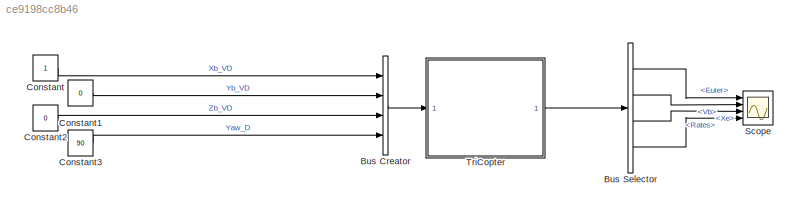
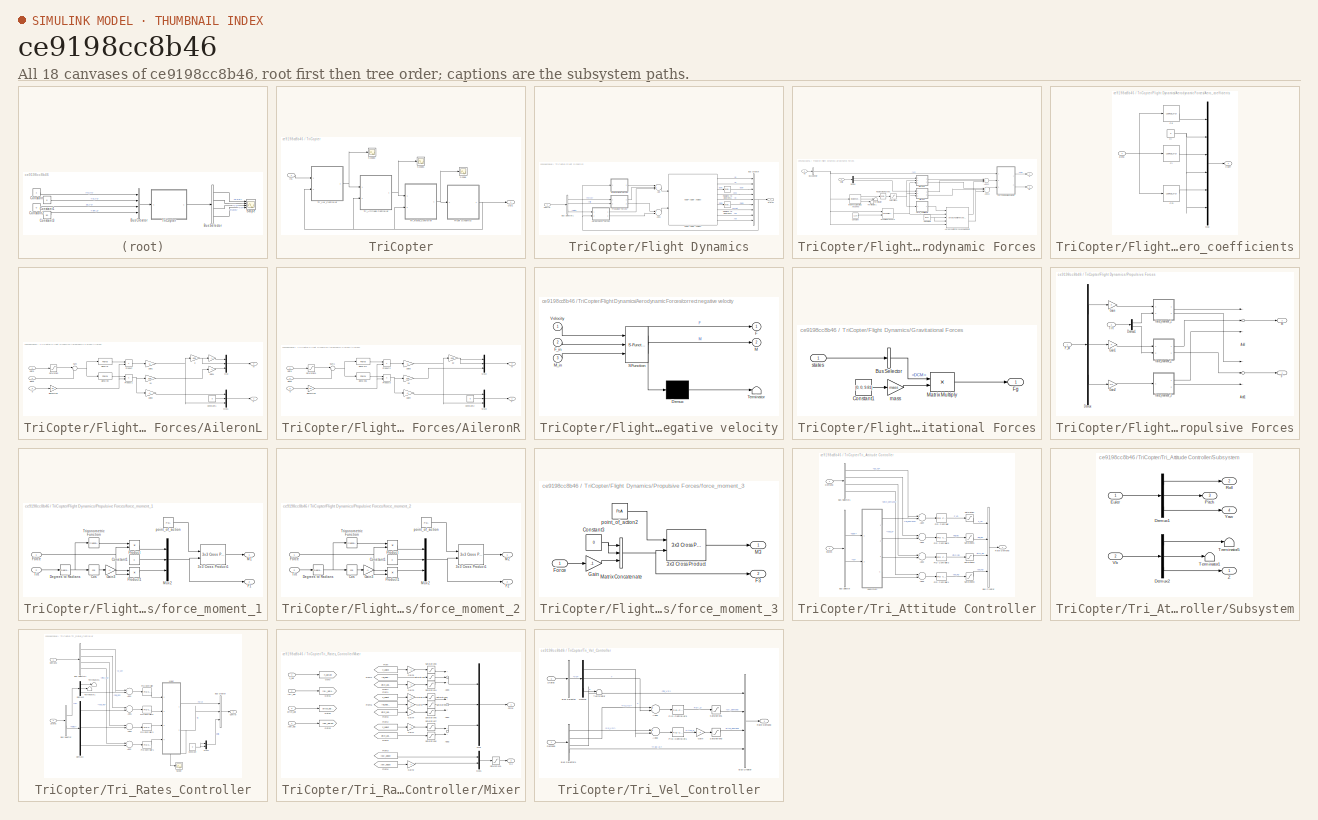
[diagram: thumbnail index - all 18 canvases of the model, root first then tree order]
MODEL slx_ce9198cc8b46
KIND model
CONFIG AbsTol = auto
CONFIG EnableMultiTasking = off
CONFIG FixedStep = auto
CONFIG MaxStep = auto
CONFIG MinStep = auto
CONFIG RelTol = 1e-3
CONFIG SampleTimeConstraint = Unconstrained
CONFIG Solver = VariableStepAuto
CONFIG SolverName = VariableStepAuto
CONFIG StartTime = 0.0
CONFIG StopTime = 200
BLOCK [BusCreator] Bus Creator
  DisplayOption = bar
  InheritFromInputs = on
  Inputs = 4
  Ports = [4, 1]
BLOCK [BusSelector] Bus Selector
  OutputAsBus = off
  OutputSignals = Euler,Vb,Xe,Rates
  Ports = [1, 4]
BLOCK [Constant] Constant
BLOCK [Constant] Constant1
  Value = 0
BLOCK [Constant] Constant2
  Value = 0
BLOCK [Constant] Constant3
  Value = 90
BLOCK [Scope] Scope
  Floating = off
  NumInputPorts = 4
  Ports = [4]
  ScopeSpecificationString = Simulink.scopes.TimeScopeBlockCfg('CurrentConfiguration', extmgr.ConfigurationSet(extmgr.Configuration('Core','General UI',true),extmgr.Configuration('Core','Source UI',true),extmgr.Configuration('Sources','WiredSimulink',true,'DataLoggingVariableName','ScopeData1'),extmgr.Configuration('Visuals','Time Domain',true,'SerializedDisplays',{struct('MinYLimReal','-58.03569','MaxYLimReal','225.42228','Y...<+1885ch>
BLOCK [SubSystem] TriCopter
  Ports = [1, 1]
  RequestExecContextInheritance = off
BLOCK [SubSystem] TriCopter/Flight Dynamics
  Ports = [1, 1]
  RequestExecContextInheritance = off
BLOCK [Reference] TriCopter/Flight Dynamics/6DOF (Euler Angles)  REF=shared6dof/6DOF (Euler Angles)
  Ports = [2, 9]
  SourceBlock = shared6dof/6DOF (Euler Angles)
  SourceProductBaseCode = AE
  SourceProductName = Aerospace Blockset
  SourceType = 6DOF EoM (Body Axis)
BLOCK [Sum] TriCopter/Flight Dynamics/Add
  InputSameDT = off
  Inputs = +++
  OutDataTypeStr = Inherit: Inherit via internal rule
  Ports = [3, 1]
  SaturateOnIntegerOverflow = off
BLOCK [Sum] TriCopter/Flight Dynamics/Add1
  InputSameDT = off
  OutDataTypeStr = Inherit: Inherit via internal rule
  Ports = [2, 1]
  SaturateOnIntegerOverflow = off
BLOCK [SubSystem] TriCopter/Flight Dynamics/Aerodynamic Forces
  Ports = [2, 2]
  RequestExecContextInheritance = off
BLOCK [Sum] TriCopter/Flight Dynamics/Aerodynamic Forces/Add12
  InputSameDT = off
  Inputs = +++
  OutDataTypeStr = Inherit: Inherit via internal rule
  Ports = [3, 1]
  SaturateOnIntegerOverflow = off
BLOCK [Sum] TriCopter/Flight Dynamics/Aerodynamic Forces/Add13
  InputSameDT = off
  Inputs = +++
  OutDataTypeStr = Inherit: Inherit via internal rule
  Ports = [3, 1]
  SaturateOnIntegerOverflow = off
BLOCK [SubSystem] TriCopter/Flight Dynamics/Aerodynamic Forces/Aero_coefficients
  Ports = [1, 1]
  RequestExecContextInheritance = off
BLOCK [Lookup_n-D] TriCopter/Flight Dynamics/Aerodynamic Forces/Aero_coefficients/Cd
  BreakpointsForDimension1 = [-22\n-20\n-18\n-16\n-14\n-12\n-10\n-8\n-6\n-4\n-2\n0\n2\n4\n6\n8\n10\n12\n14\n16\n18\n20\n22]
  InternalRulePriority = Speed
  NumberOfTableDimensions = 1
  Ports = [1, 1]
  RndMeth = Simplest
  Table = [0.392965675000000\n0.341758938000000\n0.291869622000000\n0.243198735000000\n0.201122935000000\n0.162088921000000\n0.119255102000000\n0.0879271140000000\n0.0661394560000000\n0.0508236150000000\n0.0422907190000000\n0.0388286200000000\n0.0390186100000000\n0.0428645290000000\n0.0503231290000000\n0.0617672500000000\n0.0796637510000000\n0.103830904000000\n0.130929057000000\n0.163534014000000\n0.205122935000000\n0.273406040...<+25ch>
BLOCK [Constant] TriCopter/Flight Dynamics/Aerodynamic Forces/Aero_coefficients/Cl
  Value = 0
BLOCK [Lookup_n-D] TriCopter/Flight Dynamics/Aerodynamic Forces/Aero_coefficients/Cl 
  BreakpointsForDimension1 = [-22\n-20\n-18\n-16\n-14\n-12\n-10\n-8\n-6\n-4\n-2\n0\n2\n4\n6\n8\n10\n12\n14\n16\n18\n20\n22]
  InternalRulePriority = Speed
  NumberOfTableDimensions = 1
  Ports = [1, 1]
  RndMeth = Simplest
  Table = [-1.05304747000000\n-0.939866144000000\n-0.835877820000000\n-0.772327502000000\n-0.744091351000000\n-0.678260447000000\n-0.627152575000000\n-0.541724976000000\n-0.430579689000000\n-0.309313897000000\n-0.176928086000000\n-0.0384528670000000\n0.102475219000000\n0.243855685000000\n0.381506317000000\n0.522103984000000\n0.649275996000000\n0.776705539000000\n0.874480078000000\n0.954319728000000\n1.00194617500000\n0.97672155...<+26ch>
BLOCK [Lookup_n-D] TriCopter/Flight Dynamics/Aerodynamic Forces/Aero_coefficients/Cm
  BreakpointsForDimension1 = [-22\n-20\n-18\n-16\n-14\n-12\n-10\n-8\n-6\n-4\n-2\n0\n2\n4\n6\n8\n10\n12\n14\n16\n18\n20\n22]
  InternalRulePriority = Speed
  NumberOfTableDimensions = 1
  Ports = [1, 1]
  RndMeth = Simplest
  Table = [-0.0374352130000000\n-0.0346318370000000\n-0.0299414270000000\n-0.0257262990000000\n-0.0215954230000000\n-0.0114725440000000\n0.0141471030000000\n0.0288031780000000\n0.0376529660000000\n0.0436490160000000\n0.0450585630000000\n0.0429304540000000\n0.0377977440000000\n0.0321134120000000\n0.0258494080000000\n0.0177846340000000\n0.0110621100000000\n0.00550642000000000\n0.00100000000000000\n-0.00339548100000000\n0.0115161...<+48ch>
BLOCK [Outport] TriCopter/Flight Dynamics/Aerodynamic Forces/Aero_coefficients/Coeff
  IconDisplay = Port number
BLOCK [Mux] TriCopter/Flight Dynamics/Aerodynamic Forces/Aero_coefficients/Mux
  DisplayOption = bar
  Inputs = 6
  Ports = [6, 1]
BLOCK [Inport] TriCopter/Flight Dynamics/Aerodynamic Forces/Aero_coefficients/alpha
  IconDisplay = Port number
BLOCK [Reference] TriCopter/Flight Dynamics/Aerodynamic Forces/Aerodynamic Forces and Moments   REF=aerolibadyn/Aerodynamic
Forces and Moments 
  Ports = [5, 2]
  SourceBlock = aerolibadyn/Aerodynamic\nForces and Moments
  SourceProductBaseCode = AE
  SourceProductName = Aerospace Blockset
  SourceType = Aerodynamic Forces and Moments
BLOCK [SubSystem] TriCopter/Flight Dynamics/Aerodynamic Forces/AileronL
  Ports = [3, 2]
  RequestExecContextInheritance = off
BLOCK [Gain] TriCopter/Flight Dynamics/Aerodynamic Forces/AileronL/ 
  Gain = -1
  OutDataTypeStr = Inherit: Inherit via internal rule
  ParamDataTypeStr = Inherit: Inherit via internal rule
  SaturateOnIntegerOverflow = off
BLOCK [Gain] TriCopter/Flight Dynamics/Aerodynamic Forces/AileronL/AilevonArea
  Gain = .05
  OutDataTypeStr = Inherit: Inherit via internal rule
  ParamDataTypeStr = Inherit: Inherit via internal rule
  SaturateOnIntegerOverflow = off
BLOCK [Constant] TriCopter/Flight Dynamics/Aerodynamic Forces/AileronL/Constant1
  Value = 0
BLOCK [Outport] TriCopter/Flight Dynamics/Aerodynamic Forces/AileronL/F
  IconDisplay = Port number
BLOCK [Outport] TriCopter/Flight Dynamics/Aerodynamic Forces/AileronL/M
  IconDisplay = Port number
  Port = 2
BLOCK [Mux] TriCopter/Flight Dynamics/Aerodynamic Forces/AileronL/Mux
  DisplayOption = bar
  Inputs = 3
  Ports = [3, 1]
BLOCK [Mux] TriCopter/Flight Dynamics/Aerodynamic Forces/AileronL/Mux1
  DisplayOption = bar
  Inputs = 3
  Ports = [3, 1]
BLOCK [Product] TriCopter/Flight Dynamics/Aerodynamic Forces/AileronL/Product
  InputSameDT = off
  OutDataTypeStr = Inherit: Inherit via internal rule
  Ports = [2, 1]
  RndMeth = Floor
  SaturateOnIntegerOverflow = off
BLOCK [Product] TriCopter/Flight Dynamics/Aerodynamic Forces/AileronL/Product1
  InputSameDT = off
  OutDataTypeStr = Inherit: Inherit via internal rule
  Ports = [2, 1]
  RndMeth = Floor
  SaturateOnIntegerOverflow = off
BLOCK [Saturate] TriCopter/Flight Dynamics/Aerodynamic Forces/AileronL/Saturation
  InputPortMap = u0
  LowerLimit = -20
  Ports = [1, 1]
  UpperLimit = 20
BLOCK [Sum] TriCopter/Flight Dynamics/Aerodynamic Forces/AileronL/Sum
  IconShape = round
  InputSameDT = off
  Inputs = |++
  OutDataTypeStr = Inherit: Inherit via internal rule
  Ports = [2, 1]
  SaturateOnIntegerOverflow = off
BLOCK [Gain] TriCopter/Flight Dynamics/Aerodynamic Forces/AileronL/a
  Gain = .505
  OutDataTypeStr = Inherit: Inherit via internal rule
  ParamDataTypeStr = Inherit: Inherit via internal rule
  SaturateOnIntegerOverflow = off
BLOCK [Gain] TriCopter/Flight Dynamics/Aerodynamic Forces/AileronL/a1
  Gain = .505
  OutDataTypeStr = Inherit: Inherit via internal rule
  ParamDataTypeStr = Inherit: Inherit via internal rule
  SaturateOnIntegerOverflow = off
BLOCK [Inport] TriCopter/Flight Dynamics/Aerodynamic Forces/AileronL/alpha
  IconDisplay = Port number
  Port = 2
BLOCK [Polyval] TriCopter/Flight Dynamics/Aerodynamic Forces/AileronL/alpha-CD
  Coefs = [2e-5 2e-8 -5e-5 -4e-7 .0119]
BLOCK [Polyval] TriCopter/Flight Dynamics/Aerodynamic Forces/AileronL/alpha-CL
  Coefs = [0.0987 0]
BLOCK [Inport] TriCopter/Flight Dynamics/Aerodynamic Forces/AileronL/delta
  IconDisplay = Port number
BLOCK [Gain] TriCopter/Flight Dynamics/Aerodynamic Forces/AileronL/gain1
  Gain = -1
  OutDataTypeStr = Inherit: Inherit via internal rule
  ParamDataTypeStr = Inherit: Inherit via internal rule
  SaturateOnIntegerOverflow = off
BLOCK [Gain] TriCopter/Flight Dynamics/Aerodynamic Forces/AileronL/gain2
  Gain = -1
  OutDataTypeStr = Inherit: Inherit via internal rule
  ParamDataTypeStr = Inherit: Inherit via internal rule
  SaturateOnIntegerOverflow = off
BLOCK [Gain] TriCopter/Flight Dynamics/Aerodynamic Forces/AileronL/gain4
  Gain = -1
  OutDataTypeStr = Inherit: Inherit via internal rule
  ParamDataTypeStr = Inherit: Inherit via internal rule
  SaturateOnIntegerOverflow = off
BLOCK [Inport] TriCopter/Flight Dynamics/Aerodynamic Forces/AileronL/q
  IconDisplay = Port number
  Port = 3
BLOCK [SubSystem] TriCopter/Flight Dynamics/Aerodynamic Forces/AileronR
  Ports = [3, 2]
  RequestExecContextInheritance = off
BLOCK [Gain] TriCopter/Flight Dynamics/Aerodynamic Forces/AileronR/AilevonArea
  Gain = .05
  OutDataTypeStr = Inherit: Inherit via internal rule
  ParamDataTypeStr = Inherit: Inherit via internal rule
  SaturateOnIntegerOverflow = off
BLOCK [Constant] TriCopter/Flight Dynamics/Aerodynamic Forces/AileronR/Constant2
  Value = 0
BLOCK [Outport] TriCopter/Flight Dynamics/Aerodynamic Forces/AileronR/F
  IconDisplay = Port number
BLOCK [Outport] TriCopter/Flight Dynamics/Aerodynamic Forces/AileronR/M
  IconDisplay = Port number
  Port = 2
BLOCK [Mux] TriCopter/Flight Dynamics/Aerodynamic Forces/AileronR/Mux2
  DisplayOption = bar
  Inputs = 3
  Ports = [3, 1]
BLOCK [Mux] TriCopter/Flight Dynamics/Aerodynamic Forces/AileronR/Mux3
  DisplayOption = bar
  Inputs = 3
  Ports = [3, 1]
BLOCK [Product] TriCopter/Flight Dynamics/Aerodynamic Forces/AileronR/Product2
  InputSameDT = off
  OutDataTypeStr = Inherit: Inherit via internal rule
  Ports = [2, 1]
  RndMeth = Floor
  SaturateOnIntegerOverflow = off
BLOCK [Product] TriCopter/Flight Dynamics/Aerodynamic Forces/AileronR/Product3
  InputSameDT = off
  OutDataTypeStr = Inherit: Inherit via internal rule
  Ports = [2, 1]
  RndMeth = Floor
  SaturateOnIntegerOverflow = off
BLOCK [Saturate] TriCopter/Flight Dynamics/Aerodynamic Forces/AileronR/Saturation1
  InputPortMap = u0
  LowerLimit = -20
  Ports = [1, 1]
  UpperLimit = 20
BLOCK [Sum] TriCopter/Flight Dynamics/Aerodynamic Forces/AileronR/Sum1
  IconShape = round
  InputSameDT = off
  Inputs = |++
  OutDataTypeStr = Inherit: Inherit via internal rule
  Ports = [2, 1]
  SaturateOnIntegerOverflow = off
BLOCK [Gain] TriCopter/Flight Dynamics/Aerodynamic Forces/AileronR/a2
  Gain = .505
  OutDataTypeStr = Inherit: Inherit via internal rule
  ParamDataTypeStr = Inherit: Inherit via internal rule
  SaturateOnIntegerOverflow = off
BLOCK [Gain] TriCopter/Flight Dynamics/Aerodynamic Forces/AileronR/a3
  Gain = .505
  OutDataTypeStr = Inherit: Inherit via internal rule
  ParamDataTypeStr = Inherit: Inherit via internal rule
  SaturateOnIntegerOverflow = off
BLOCK [Inport] TriCopter/Flight Dynamics/Aerodynamic Forces/AileronR/alpha
  IconDisplay = Port number
  Port = 2
BLOCK [Polyval] TriCopter/Flight Dynamics/Aerodynamic Forces/AileronR/alpha-CD1
  Coefs = [2e-5 2e-8 -5e-5 -4e-7 .0119]
BLOCK [Polyval] TriCopter/Flight Dynamics/Aerodynamic Forces/AileronR/alpha-CL1
  Coefs = [0.0987 0]
BLOCK [Inport] TriCopter/Flight Dynamics/Aerodynamic Forces/AileronR/delta
  IconDisplay = Port number
BLOCK [Gain] TriCopter/Flight Dynamics/Aerodynamic Forces/AileronR/gain3
  Gain = -1
  OutDataTypeStr = Inherit: Inherit via internal rule
  ParamDataTypeStr = Inherit: Inherit via internal rule
  SaturateOnIntegerOverflow = off
BLOCK [Gain] TriCopter/Flight Dynamics/Aerodynamic Forces/AileronR/gain4
  Gain = -1
  OutDataTypeStr = Inherit: Inherit via internal rule
  ParamDataTypeStr = Inherit: Inherit via internal rule
  SaturateOnIntegerOverflow = off
BLOCK [Inport] TriCopter/Flight Dynamics/Aerodynamic Forces/AileronR/q
  IconDisplay = Port number
  Port = 3
BLOCK [BusSelector] TriCopter/Flight Dynamics/Aerodynamic Forces/Bus Selector
  OutputAsBus = off
  OutputSignals = Vb
  Ports = [1, 1]
BLOCK [Constant] TriCopter/Flight Dynamics/Aerodynamic Forces/Constant
  Value = 1.225
BLOCK [Constant] TriCopter/Flight Dynamics/Aerodynamic Forces/Constant2
  Value = [0 0 0]
BLOCK [Demux] TriCopter/Flight Dynamics/Aerodynamic Forces/Demux
  DisplayOption = bar
  Outputs = 2
  Ports = [1, 2]
BLOCK [Reference] TriCopter/Flight Dynamics/Aerodynamic Forces/Dynamic Pressure  REF=aerolibasang/Dynamic Pressure
  Ports = [2, 1]
  SourceBlock = aerolibasang/Dynamic Pressure
  SourceProductBaseCode = AE
  SourceProductName = Aerospace Blockset
  SourceType = Dynamic Pressure
BLOCK [Outport] TriCopter/Flight Dynamics/Aerodynamic Forces/F
  IconDisplay = Port number
BLOCK [Reference] TriCopter/Flight Dynamics/Aerodynamic Forces/Incidence, Sideslip, & Airspeed  REF=aerolibasang/Incidence, Sideslip,
& Airspeed
  Ports = [1, 3]
  SourceBlock = aerolibasang/Incidence, Sideslip,\n& Airspeed
  SourceProductBaseCode = AE
  SourceProductName = Aerospace Blockset
  SourceType = Incidence,Sideslip,&Airspeed
BLOCK [Outport] TriCopter/Flight Dynamics/Aerodynamic Forces/M
  IconDisplay = Port number
  Port = 2
BLOCK [Reference] TriCopter/Flight Dynamics/Aerodynamic Forces/Radians to Degrees  REF=simulink_extras/Transformations/Radians
to Degrees
  Ports = [1, 1]
  SourceBlock = simulink_extras/Transformations/Radians\nto Degrees
  SourceProductBaseCode = SL
  SourceProductName = Simulink
  SourceType = RadiansToDegrees
BLOCK [Saturate] TriCopter/Flight Dynamics/Aerodynamic Forces/Saturation1
  InputPortMap = u0
  LowerLimit = -22
  Ports = [1, 1]
  UpperLimit = 22
BLOCK [Terminator] TriCopter/Flight Dynamics/Aerodynamic Forces/Terminator
BLOCK [Terminator] TriCopter/Flight Dynamics/Aerodynamic Forces/Terminator1
BLOCK [Inport] TriCopter/Flight Dynamics/Aerodynamic Forces/Vb
  IconDisplay = Port number
  Port = 2
BLOCK [SubSystem] TriCopter/Flight Dynamics/Aerodynamic Forces/correct negative velocity
  ErrorFcn = Stateflow.Translate.translate
  PermitHierarchicalResolution = ExplicitOnly
  Ports = [3, 2]
  RequestExecContextInheritance = off
  SFBlockType = MATLAB Function
  TreatAsAtomicUnit = on
BLOCK [Demux] TriCopter/Flight Dynamics/Aerodynamic Forces/correct negative velocity/ Demux 
  Outputs = 1
  Ports = [1, 1]
BLOCK [S-Function] TriCopter/Flight Dynamics/Aerodynamic Forces/correct negative velocity/ SFunction 
  EnableBusSupport = on
  FunctionName = sf_sfun
  PortCounts = [3 3]
  Ports = [3, 3]
  SFcnIsStateOwnerBlock = off
  SFunctionDeploymentMode = off
  Tag = Stateflow S-Function Tricopter_vel_control 1
BLOCK [Terminator] TriCopter/Flight Dynamics/Aerodynamic Forces/correct negative velocity/ Terminator 
BLOCK [Outport] TriCopter/Flight Dynamics/Aerodynamic Forces/correct negative velocity/F
  IconDisplay = Port number
BLOCK [Inport] TriCopter/Flight Dynamics/Aerodynamic Forces/correct negative velocity/F_in
  IconDisplay = Port number
  Port = 2
BLOCK [Outport] TriCopter/Flight Dynamics/Aerodynamic Forces/correct negative velocity/M
  IconDisplay = Port number
  Port = 2
BLOCK [Inport] TriCopter/Flight Dynamics/Aerodynamic Forces/correct negative velocity/M_in
  IconDisplay = Port number
  Port = 3
BLOCK [Inport] TriCopter/Flight Dynamics/Aerodynamic Forces/correct negative velocity/Velocity
  IconDisplay = Port number
BLOCK [Inport] TriCopter/Flight Dynamics/Aerodynamic Forces/delta
  IconDisplay = Port number
BLOCK [BusCreator] TriCopter/Flight Dynamics/Bus Creator
  DisplayOption = bar
  InheritFromInputs = on
  Inputs = 9
  Ports = [9, 1]
BLOCK [BusSelector] TriCopter/Flight Dynamics/Bus Selector1
  OutputAsBus = off
  OutputSignals = Force,Tilt,Delta
  Ports = [1, 3]
BLOCK [Inport] TriCopter/Flight Dynamics/Control
  IconDisplay = Port number
BLOCK [SubSystem] TriCopter/Flight Dynamics/Gravitational Forces
  Ports = [1, 1]
  RequestExecContextInheritance = off
BLOCK [BusSelector] TriCopter/Flight Dynamics/Gravitational Forces/Bus Selector
  OutputAsBus = off
  OutputSignals = DCM
  Ports = [1, 1]
BLOCK [Constant] TriCopter/Flight Dynamics/Gravitational Forces/Constant1
  Value = [0; 0; 9.81]
BLOCK [Outport] TriCopter/Flight Dynamics/Gravitational Forces/Fg
  IconDisplay = Port number
BLOCK [Product] TriCopter/Flight Dynamics/Gravitational Forces/Matrix Multiply
  InputSameDT = off
  Multiplication = Matrix(*)
  OutDataTypeStr = Inherit: Inherit via internal rule
  Ports = [2, 1]
  RndMeth = Floor
  SaturateOnIntegerOverflow = off
BLOCK [Gain] TriCopter/Flight Dynamics/Gravitational Forces/mass
  Gain = mass
  OutDataTypeStr = Inherit: Inherit via internal rule
  ParamDataTypeStr = Inherit: Inherit via internal rule
  SaturateOnIntegerOverflow = off
BLOCK [Inport] TriCopter/Flight Dynamics/Gravitational Forces/states
  IconDisplay = Port number
BLOCK [SubSystem] TriCopter/Flight Dynamics/Propulsive Forces
  Ports = [2, 2]
  RequestExecContextInheritance = off
BLOCK [Sum] TriCopter/Flight Dynamics/Propulsive Forces/Add
  InputSameDT = off
  Inputs = +++
  OutDataTypeStr = Inherit: Inherit via internal rule
  Ports = [3, 1]
  SaturateOnIntegerOverflow = off
BLOCK [Sum] TriCopter/Flight Dynamics/Propulsive Forces/Add1
  InputSameDT = off
  Inputs = +++
  OutDataTypeStr = Inherit: Inherit via internal rule
  Ports = [3, 1]
  SaturateOnIntegerOverflow = off
BLOCK [Demux] TriCopter/Flight Dynamics/Propulsive Forces/Demux
  DisplayOption = bar
  Outputs = 3
  Ports = [1, 3]
BLOCK [Demux] TriCopter/Flight Dynamics/Propulsive Forces/Demux1
  DisplayOption = bar
  Outputs = 2
  Ports = [1, 2]
BLOCK [Outport] TriCopter/Flight Dynamics/Propulsive Forces/F
  IconDisplay = Port number
BLOCK [Inport] TriCopter/Flight Dynamics/Propulsive Forces/F_M 
  IconDisplay = Port number
BLOCK [Gain] TriCopter/Flight Dynamics/Propulsive Forces/Gain
  Gain = F
  OutDataTypeStr = Inherit: Inherit via internal rule
  ParamDataTypeStr = Inherit: Inherit via internal rule
  SaturateOnIntegerOverflow = off
BLOCK [Gain] TriCopter/Flight Dynamics/Propulsive Forces/Gain1
  Gain = F
  OutDataTypeStr = Inherit: Inherit via internal rule
  ParamDataTypeStr = Inherit: Inherit via internal rule
  SaturateOnIntegerOverflow = off
BLOCK [Gain] TriCopter/Flight Dynamics/Propulsive Forces/Gain2
  Gain = 2*F
  OutDataTypeStr = Inherit: Inherit via internal rule
  ParamDataTypeStr = Inherit: Inherit via internal rule
  SaturateOnIntegerOverflow = off
BLOCK [Outport] TriCopter/Flight Dynamics/Propulsive Forces/M
  IconDisplay = Port number
  Port = 2
BLOCK [Inport] TriCopter/Flight Dynamics/Propulsive Forces/Tilt
  IconDisplay = Port number
  Port = 2
BLOCK [SubSystem] TriCopter/Flight Dynamics/Propulsive Forces/force_moment_1
  Ports = [2, 2]
  RequestExecContextInheritance = off
BLOCK [Reference] TriCopter/Flight Dynamics/Propulsive Forces/force_moment_1/3x3 Cross Product1  REF=sharedutil/3x3 Cross Product
  Ports = [2, 1]
  SourceBlock = sharedutil/3x3 Cross Product
  SourceProductBaseCode = AE
  SourceProductName = Aerospace Blockset
  SourceType = CrossProduct
BLOCK [Constant] TriCopter/Flight Dynamics/Propulsive Forces/force_moment_1/Constant1
  Value = 0
BLOCK [Trigonometry] TriCopter/Flight Dynamics/Propulsive Forces/force_moment_1/Cos
  Operator = cos
  Ports = [1, 1]
BLOCK [Reference] TriCopter/Flight Dynamics/Propulsive Forces/force_moment_1/Degrees to Radians  REF=simulink_extras/Transformations/Degrees to
Radians
  Ports = [1, 1]
  SourceBlock = simulink_extras/Transformations/Degrees to\nRadians
  SourceProductBaseCode = SL
  SourceProductName = Simulink
  SourceType = DegreesToRadians
BLOCK [Outport] TriCopter/Flight Dynamics/Propulsive Forces/force_moment_1/F1 
  IconDisplay = Port number
  Port = 2
BLOCK [Inport] TriCopter/Flight Dynamics/Propulsive Forces/force_moment_1/Force
  IconDisplay = Port number
BLOCK [Gain] TriCopter/Flight Dynamics/Propulsive Forces/force_moment_1/Gain3
  Gain = -1
  OutDataTypeStr = Inherit: Inherit via internal rule
  ParamDataTypeStr = Inherit: Inherit via internal rule
  SaturateOnIntegerOverflow = off
BLOCK [Outport] TriCopter/Flight Dynamics/Propulsive Forces/force_moment_1/M1
  IconDisplay = Port number
BLOCK [Mux] TriCopter/Flight Dynamics/Propulsive Forces/force_moment_1/Mux2
  DisplayOption = bar
  Inputs = 3
  Ports = [3, 1]
BLOCK [Product] TriCopter/Flight Dynamics/Propulsive Forces/force_moment_1/Product
  InputSameDT = off
  OutDataTypeStr = Inherit: Inherit via internal rule
  Ports = [2, 1]
  RndMeth = Floor
  SaturateOnIntegerOverflow = off
BLOCK [Product] TriCopter/Flight Dynamics/Propulsive Forces/force_moment_1/Product1
  InputSameDT = off
  OutDataTypeStr = Inherit: Inherit via internal rule
  Ports = [2, 1]
  RndMeth = Floor
  SaturateOnIntegerOverflow = off
BLOCK [Inport] TriCopter/Flight Dynamics/Propulsive Forces/force_moment_1/Tilt
  IconDisplay = Port number
  Port = 2
BLOCK [Trigonometry] TriCopter/Flight Dynamics/Propulsive Forces/force_moment_1/Trigonometric Function
  Ports = [1, 1]
BLOCK [Constant] TriCopter/Flight Dynamics/Propulsive Forces/force_moment_1/point_of_action
  Value = PoA
  VectorParams1D = off
BLOCK [SubSystem] TriCopter/Flight Dynamics/Propulsive Forces/force_moment_2
  Ports = [2, 2]
  RequestExecContextInheritance = off
BLOCK [Reference] TriCopter/Flight Dynamics/Propulsive Forces/force_moment_2/3x3 Cross Product1  REF=sharedutil/3x3 Cross Product
  Ports = [2, 1]
  SourceBlock = sharedutil/3x3 Cross Product
  SourceProductBaseCode = AE
  SourceProductName = Aerospace Blockset
  SourceType = CrossProduct
BLOCK [Constant] TriCopter/Flight Dynamics/Propulsive Forces/force_moment_2/Constant1
  Value = 0
BLOCK [Trigonometry] TriCopter/Flight Dynamics/Propulsive Forces/force_moment_2/Cos
  Operator = cos
  Ports = [1, 1]
BLOCK [Reference] TriCopter/Flight Dynamics/Propulsive Forces/force_moment_2/Degrees to Radians  REF=simulink_extras/Transformations/Degrees to
Radians
  Ports = [1, 1]
  SourceBlock = simulink_extras/Transformations/Degrees to\nRadians
  SourceProductBaseCode = SL
  SourceProductName = Simulink
  SourceType = DegreesToRadians
BLOCK [Outport] TriCopter/Flight Dynamics/Propulsive Forces/force_moment_2/F2 
  IconDisplay = Port number
  Port = 2
BLOCK [Inport] TriCopter/Flight Dynamics/Propulsive Forces/force_moment_2/Force
  IconDisplay = Port number
BLOCK [Gain] TriCopter/Flight Dynamics/Propulsive Forces/force_moment_2/Gain3
  Gain = -1
  OutDataTypeStr = Inherit: Inherit via internal rule
  ParamDataTypeStr = Inherit: Inherit via internal rule
  SaturateOnIntegerOverflow = off
BLOCK [Outport] TriCopter/Flight Dynamics/Propulsive Forces/force_moment_2/M2
  IconDisplay = Port number
BLOCK [Mux] TriCopter/Flight Dynamics/Propulsive Forces/force_moment_2/Mux2
  DisplayOption = bar
  Inputs = 3
  Ports = [3, 1]
BLOCK [Product] TriCopter/Flight Dynamics/Propulsive Forces/force_moment_2/Product
  InputSameDT = off
  OutDataTypeStr = Inherit: Inherit via internal rule
  Ports = [2, 1]
  RndMeth = Floor
  SaturateOnIntegerOverflow = off
BLOCK [Product] TriCopter/Flight Dynamics/Propulsive Forces/force_moment_2/Product1
  InputSameDT = off
  OutDataTypeStr = Inherit: Inherit via internal rule
  Ports = [2, 1]
  RndMeth = Floor
  SaturateOnIntegerOverflow = off
BLOCK [Inport] TriCopter/Flight Dynamics/Propulsive Forces/force_moment_2/Tilt
  IconDisplay = Port number
  Port = 2
BLOCK [Trigonometry] TriCopter/Flight Dynamics/Propulsive Forces/force_moment_2/Trigonometric Function
  Ports = [1, 1]
BLOCK [Constant] TriCopter/Flight Dynamics/Propulsive Forces/force_moment_2/point_of_action
  Value = PoA
  VectorParams1D = off
BLOCK [SubSystem] TriCopter/Flight Dynamics/Propulsive Forces/force_moment_3
  Ports = [1, 2]
  RequestExecContextInheritance = off
BLOCK [Reference] TriCopter/Flight Dynamics/Propulsive Forces/force_moment_3/3x3 Cross Product  REF=sharedutil/3x3 Cross Product
  Ports = [2, 1]
  SourceBlock = sharedutil/3x3 Cross Product
  SourceProductBaseCode = AE
  SourceProductName = Aerospace Blockset
  SourceType = CrossProduct
BLOCK [Constant] TriCopter/Flight Dynamics/Propulsive Forces/force_moment_3/Constant3
  Value = 0
BLOCK [Outport] TriCopter/Flight Dynamics/Propulsive Forces/force_moment_3/F3
  IconDisplay = Port number
  Port = 2
BLOCK [Inport] TriCopter/Flight Dynamics/Propulsive Forces/force_moment_3/Force
  IconDisplay = Port number
BLOCK [Gain] TriCopter/Flight Dynamics/Propulsive Forces/force_moment_3/Gain
  Gain = -1
  OutDataTypeStr = Inherit: Inherit via internal rule
  ParamDataTypeStr = Inherit: Inherit via internal rule
  SaturateOnIntegerOverflow = off
BLOCK [Outport] TriCopter/Flight Dynamics/Propulsive Forces/force_moment_3/M3
  IconDisplay = Port number
BLOCK [Concatenate] TriCopter/Flight Dynamics/Propulsive Forces/force_moment_3/Matrix Concatenate
  ConcatenateDimension = 2
  NumInputs = 3
  Ports = [3, 1]
BLOCK [Constant] TriCopter/Flight Dynamics/Propulsive Forces/force_moment_3/point_of_action2
  Value = PoA
  VectorParams1D = off
BLOCK [Reference] TriCopter/Flight Dynamics/Radians to Degrees1  REF=simulink_extras/Transformations/Radians
to Degrees
  Ports = [1, 1]
  SourceBlock = simulink_extras/Transformations/Radians\nto Degrees
  SourceProductBaseCode = SL
  SourceProductName = Simulink
  SourceType = RadiansToDegrees
BLOCK [Reference] TriCopter/Flight Dynamics/Radians to Degrees2  REF=simulink_extras/Transformations/Radians
to Degrees
  Ports = [1, 1]
  SourceBlock = simulink_extras/Transformations/Radians\nto Degrees
  SourceProductBaseCode = SL
  SourceProductName = Simulink
  SourceType = RadiansToDegrees
BLOCK [Outport] TriCopter/Flight Dynamics/States
  IconDisplay = Port number
BLOCK [Inport] TriCopter/In1
  IconDisplay = Port number
BLOCK [Outport] TriCopter/Out1
  IconDisplay = Port number
BLOCK [Scope] TriCopter/Scope
  Floating = off
  NumInputPorts = 1
  Ports = [1]
  ScopeSpecificationString = Simulink.scopes.TimeScopeBlockCfg('CurrentConfiguration', extmgr.ConfigurationSet(extmgr.Configuration('Core','General UI',true),extmgr.Configuration('Core','Source UI',true),extmgr.Configuration('Sources','WiredSimulink',true),extmgr.Configuration('Visuals','Time Domain',true,'SerializedDisplays',{struct('MinYLimReal','-2.5','MaxYLimReal','2.5','YLabelReal','','MinYLimMag','0.00000','MaxYLimMag',...<+1466ch>
BLOCK [Scope] TriCopter/Scope1
  Floating = off
  NumInputPorts = 1
  Ports = [1]
  ScopeSpecificationString = Simulink.scopes.TimeScopeBlockCfg('CurrentConfiguration', extmgr.ConfigurationSet(extmgr.Configuration('Core','General UI',true),extmgr.Configuration('Core','Source UI',true),extmgr.Configuration('Sources','WiredSimulink',true,'DataLoggingVariableName','ScopeData2'),extmgr.Configuration('Visuals','Time Domain',true,'SerializedDisplays',{struct('MinYLimReal','-1.0112','MaxYLimReal','0.31084','YLabe...<+1662ch>
BLOCK [Scope] TriCopter/Scope2
  Floating = off
  NumInputPorts = 1
  Ports = [1]
  ScopeSpecificationString = Simulink.scopes.TimeScopeBlockCfg('CurrentConfiguration', extmgr.ConfigurationSet(extmgr.Configuration('Core','General UI',true),extmgr.Configuration('Core','Source UI',true),extmgr.Configuration('Sources','WiredSimulink',true,'DataLoggingVariableName','ScopeData3'),extmgr.Configuration('Visuals','Time Domain',true,'SerializedDisplays',{struct('MinYLimReal','-2.71947','MaxYLimReal','0.23855','YLab...<+1644ch>
BLOCK [SubSystem] TriCopter/Tri_Attitude Controller
  Ports = [2, 1]
  RequestExecContextInheritance = off
BLOCK [Sum] TriCopter/Tri_Attitude Controller/Add1
  InputSameDT = off
  Inputs = +-
  OutDataTypeStr = Inherit: Inherit via internal rule
  Ports = [2, 1]
  SaturateOnIntegerOverflow = off
BLOCK [Sum] TriCopter/Tri_Attitude Controller/Add2
  InputSameDT = off
  Inputs = +-
  OutDataTypeStr = Inherit: Inherit via internal rule
  Ports = [2, 1]
  SaturateOnIntegerOverflow = off
BLOCK [Sum] TriCopter/Tri_Attitude Controller/Add3
  InputSameDT = off
  Inputs = +-
  OutDataTypeStr = Inherit: Inherit via internal rule
  Ports = [2, 1]
  SaturateOnIntegerOverflow = off
BLOCK [Sum] TriCopter/Tri_Attitude Controller/Add4
  InputSameDT = off
  Inputs = +-
  OutDataTypeStr = Inherit: Inherit via internal rule
  Ports = [2, 1]
  SaturateOnIntegerOverflow = off
BLOCK [BusCreator] TriCopter/Tri_Attitude Controller/Bus Creator
  DisplayOption = bar
  InheritFromInputs = on
  Inputs = 4
  Ports = [4, 1]
BLOCK [BusSelector] TriCopter/Tri_Attitude Controller/Bus Selector
  OutputAsBus = off
  OutputSignals = Euler,Vb
  Ports = [1, 2]
BLOCK [BusSelector] TriCopter/Tri_Attitude Controller/Bus Selector1
  OutputAsBus = off
  OutputSignals = Zb_VD,roll_demand,pitch_demand,Yaw_D
  Ports = [1, 4]
BLOCK [Inport] TriCopter/Tri_Attitude Controller/Demand 
  IconDisplay = Port number
BLOCK [Reference] TriCopter/Tri_Attitude Controller/PID Controller  REF=simulink/Continuous/PID Controller
  Ports = [1, 1]
  SourceBlock = simulink/Continuous/PID Controller
  SourceProductBaseCode = SL
  SourceProductName = Simulink
  SourceType = PID 1dof
BLOCK [Reference] TriCopter/Tri_Attitude Controller/PID Controller1  REF=simulink/Continuous/PID Controller
  Ports = [1, 1]
  SourceBlock = simulink/Continuous/PID Controller
  SourceProductBaseCode = SL
  SourceProductName = Simulink
  SourceType = PID 1dof
BLOCK [Reference] TriCopter/Tri_Attitude Controller/PID Controller3  REF=simulink/Continuous/PID Controller
  Ports = [1, 1]
  SourceBlock = simulink/Continuous/PID Controller
  SourceProductBaseCode = SL
  SourceProductName = Simulink
  SourceType = PID 1dof
BLOCK [Reference] TriCopter/Tri_Attitude Controller/PID Controller5  REF=simulink/Continuous/PID Controller
  Ports = [1, 1]
  SourceBlock = simulink/Continuous/PID Controller
  SourceProductBaseCode = SL
  SourceProductName = Simulink
  SourceType = PID 1dof
BLOCK [Outport] TriCopter/Tri_Attitude Controller/Rate Demand
  IconDisplay = Port number
BLOCK [Saturate] TriCopter/Tri_Attitude Controller/Saturation
  InputPortMap = u0
  LinearizeAsGain = off
  LowerLimit = -30
  Ports = [1, 1]
  UpperLimit = 30
BLOCK [Saturate] TriCopter/Tri_Attitude Controller/Saturation1
  InputPortMap = u0
  LinearizeAsGain = off
  LowerLimit = -30
  Ports = [1, 1]
  UpperLimit = 30
BLOCK [Saturate] TriCopter/Tri_Attitude Controller/Saturation2
  InputPortMap = u0
  LinearizeAsGain = off
  LowerLimit = -30
  Ports = [1, 1]
  UpperLimit = 30
BLOCK [Saturate] TriCopter/Tri_Attitude Controller/Saturation3
  InputPortMap = u0
  LinearizeAsGain = off
  LowerLimit = -30
  Ports = [1, 1]
  UpperLimit = 30
BLOCK [Inport] TriCopter/Tri_Attitude Controller/States 
  IconDisplay = Port number
  Port = 2
BLOCK [SubSystem] TriCopter/Tri_Attitude Controller/Subsystem
  Ports = [2, 4]
  RequestExecContextInheritance = off
BLOCK [Demux] TriCopter/Tri_Attitude Controller/Subsystem/Demux1
  DisplayOption = bar
  Outputs = 3
  Ports = [1, 3]
BLOCK [Demux] TriCopter/Tri_Attitude Controller/Subsystem/Demux2
  DisplayOption = bar
  Outputs = 3
  Ports = [1, 3]
BLOCK [Inport] TriCopter/Tri_Attitude Controller/Subsystem/Euler
  IconDisplay = Port number
BLOCK [Outport] TriCopter/Tri_Attitude Controller/Subsystem/Pitch
  IconDisplay = Port number
  Port = 3
BLOCK [Outport] TriCopter/Tri_Attitude Controller/Subsystem/Roll
  IconDisplay = Port number
  Port = 2
BLOCK [Terminator] TriCopter/Tri_Attitude Controller/Subsystem/Terminator1
BLOCK [Terminator] TriCopter/Tri_Attitude Controller/Subsystem/Terminator5
BLOCK [Inport] TriCopter/Tri_Attitude Controller/Subsystem/Vb
  IconDisplay = Port number
  Port = 2
BLOCK [Outport] TriCopter/Tri_Attitude Controller/Subsystem/Yaw
  IconDisplay = Port number
  Port = 4
BLOCK [Outport] TriCopter/Tri_Attitude Controller/Subsystem/Z
  IconDisplay = Port number
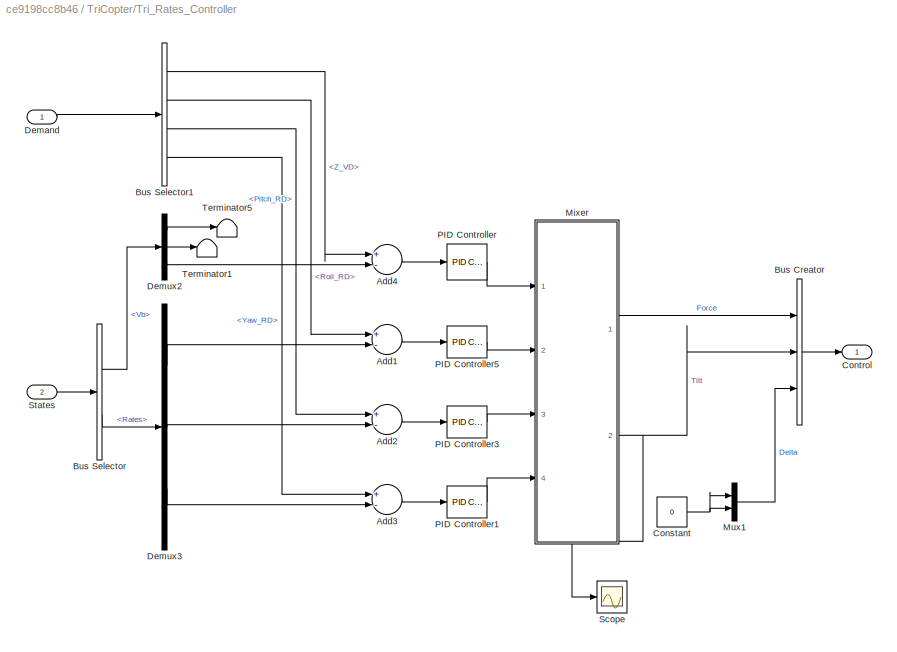
BLOCK [SubSystem] TriCopter/Tri_Rates_Controller
  Ports = [2, 1]
  RequestExecContextInheritance = off
BLOCK [Sum] TriCopter/Tri_Rates_Controller/Add1
  InputSameDT = off
  Inputs = +-
  OutDataTypeStr = Inherit: Inherit via internal rule
  Ports = [2, 1]
  SaturateOnIntegerOverflow = off
BLOCK [Sum] TriCopter/Tri_Rates_Controller/Add2
  InputSameDT = off
  Inputs = +-
  OutDataTypeStr = Inherit: Inherit via internal rule
  Ports = [2, 1]
  SaturateOnIntegerOverflow = off
BLOCK [Sum] TriCopter/Tri_Rates_Controller/Add3
  InputSameDT = off
  Inputs = +-
  OutDataTypeStr = Inherit: Inherit via internal rule
  Ports = [2, 1]
  SaturateOnIntegerOverflow = off
BLOCK [Sum] TriCopter/Tri_Rates_Controller/Add4
  InputSameDT = off
  Inputs = +-
  OutDataTypeStr = Inherit: Inherit via internal rule
  Ports = [2, 1]
  SaturateOnIntegerOverflow = off
BLOCK [BusCreator] TriCopter/Tri_Rates_Controller/Bus Creator
  DisplayOption = bar
  InheritFromInputs = on
  Inputs = 3
  Ports = [3, 1]
BLOCK [BusSelector] TriCopter/Tri_Rates_Controller/Bus Selector
  OutputAsBus = off
  OutputSignals = Vb,Rates
  Ports = [1, 2]
BLOCK [BusSelector] TriCopter/Tri_Rates_Controller/Bus Selector1
  OutputAsBus = off
  OutputSignals = Z_VD,Roll_RD,Pitch_RD,Yaw_RD
  Ports = [1, 4]
BLOCK [Constant] TriCopter/Tri_Rates_Controller/Constant
  Value = 0
BLOCK [Outport] TriCopter/Tri_Rates_Controller/Control
  IconDisplay = Port number
BLOCK [Inport] TriCopter/Tri_Rates_Controller/Demand
  IconDisplay = Port number
BLOCK [Demux] TriCopter/Tri_Rates_Controller/Demux2
  DisplayOption = bar
  Outputs = 3
  Ports = [1, 3]
BLOCK [Demux] TriCopter/Tri_Rates_Controller/Demux3
  DisplayOption = bar
  Outputs = 3
  Ports = [1, 3]
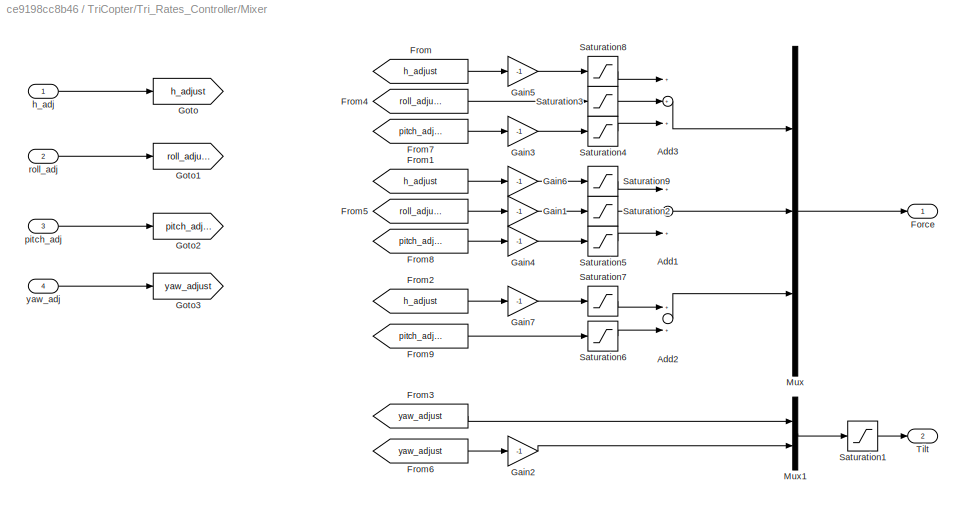
BLOCK [SubSystem] TriCopter/Tri_Rates_Controller/Mixer
  Ports = [4, 2]
  RequestExecContextInheritance = off
BLOCK [Sum] TriCopter/Tri_Rates_Controller/Mixer/Add1
  InputSameDT = off
  Inputs = +++
  OutDataTypeStr = Inherit: Inherit via internal rule
  Ports = [3, 1]
  SaturateOnIntegerOverflow = off
BLOCK [Sum] TriCopter/Tri_Rates_Controller/Mixer/Add2
  InputSameDT = off
  OutDataTypeStr = Inherit: Inherit via internal rule
  Ports = [2, 1]
  SaturateOnIntegerOverflow = off
BLOCK [Sum] TriCopter/Tri_Rates_Controller/Mixer/Add3
  InputSameDT = off
  Inputs = +++
  OutDataTypeStr = Inherit: Inherit via internal rule
  Ports = [3, 1]
  SaturateOnIntegerOverflow = off
BLOCK [Outport] TriCopter/Tri_Rates_Controller/Mixer/Force
  IconDisplay = Port number
BLOCK [From] TriCopter/Tri_Rates_Controller/Mixer/From
  GotoTag = h_adjust
BLOCK [From] TriCopter/Tri_Rates_Controller/Mixer/From1
  GotoTag = h_adjust
BLOCK [From] TriCopter/Tri_Rates_Controller/Mixer/From2
  GotoTag = h_adjust
BLOCK [From] TriCopter/Tri_Rates_Controller/Mixer/From3
  GotoTag = yaw_adjust
BLOCK [From] TriCopter/Tri_Rates_Controller/Mixer/From4
  GotoTag = roll_adjust
BLOCK [From] TriCopter/Tri_Rates_Controller/Mixer/From5
  GotoTag = roll_adjust
BLOCK [From] TriCopter/Tri_Rates_Controller/Mixer/From6
  GotoTag = yaw_adjust
BLOCK [From] TriCopter/Tri_Rates_Controller/Mixer/From7
  GotoTag = pitch_adjust
BLOCK [From] TriCopter/Tri_Rates_Controller/Mixer/From8
  GotoTag = pitch_adjust
BLOCK [From] TriCopter/Tri_Rates_Controller/Mixer/From9
  GotoTag = pitch_adjust
BLOCK [Gain] TriCopter/Tri_Rates_Controller/Mixer/Gain1
  Gain = -1
  OutDataTypeStr = Inherit: Inherit via internal rule
  ParamDataTypeStr = Inherit: Inherit via internal rule
  SaturateOnIntegerOverflow = off
BLOCK [Gain] TriCopter/Tri_Rates_Controller/Mixer/Gain2
  Gain = -1
  OutDataTypeStr = Inherit: Inherit via internal rule
  ParamDataTypeStr = Inherit: Inherit via internal rule
  SaturateOnIntegerOverflow = off
BLOCK [Gain] TriCopter/Tri_Rates_Controller/Mixer/Gain3
  Gain = -1
  OutDataTypeStr = Inherit: Inherit via internal rule
  ParamDataTypeStr = Inherit: Inherit via internal rule
  SaturateOnIntegerOverflow = off
BLOCK [Gain] TriCopter/Tri_Rates_Controller/Mixer/Gain4
  Gain = -1
  OutDataTypeStr = Inherit: Inherit via internal rule
  ParamDataTypeStr = Inherit: Inherit via internal rule
  SaturateOnIntegerOverflow = off
BLOCK [Gain] TriCopter/Tri_Rates_Controller/Mixer/Gain5
  Gain = -1
  OutDataTypeStr = Inherit: Inherit via internal rule
  ParamDataTypeStr = Inherit: Inherit via internal rule
  SaturateOnIntegerOverflow = off
BLOCK [Gain] TriCopter/Tri_Rates_Controller/Mixer/Gain6
  Gain = -1
  OutDataTypeStr = Inherit: Inherit via internal rule
  ParamDataTypeStr = Inherit: Inherit via internal rule
  SaturateOnIntegerOverflow = off
BLOCK [Gain] TriCopter/Tri_Rates_Controller/Mixer/Gain7
  Gain = -1
  OutDataTypeStr = Inherit: Inherit via internal rule
  ParamDataTypeStr = Inherit: Inherit via internal rule
  SaturateOnIntegerOverflow = off
BLOCK [Goto] TriCopter/Tri_Rates_Controller/Mixer/Goto
  GotoTag = h_adjust
BLOCK [Goto] TriCopter/Tri_Rates_Controller/Mixer/Goto1
  GotoTag = roll_adjust
BLOCK [Goto] TriCopter/Tri_Rates_Controller/Mixer/Goto2
  GotoTag = pitch_adjust
BLOCK [Goto] TriCopter/Tri_Rates_Controller/Mixer/Goto3
  GotoTag = yaw_adjust
BLOCK [Mux] TriCopter/Tri_Rates_Controller/Mixer/Mux
  DisplayOption = bar
  Inputs = 3
  Ports = [3, 1]
BLOCK [Mux] TriCopter/Tri_Rates_Controller/Mixer/Mux1
  DisplayOption = bar
  Inputs = 2
  Ports = [2, 1]
BLOCK [Saturate] TriCopter/Tri_Rates_Controller/Mixer/Saturation1
  InputPortMap = u0
  LowerLimit = -2
  Ports = [1, 1]
  UpperLimit = 2
  ZeroCross = off
BLOCK [Saturate] TriCopter/Tri_Rates_Controller/Mixer/Saturation2
  InputPortMap = u0
  LowerLimit = 0
  Ports = [1, 1]
  UpperLimit = 0.3
  ZeroCross = off
BLOCK [Saturate] TriCopter/Tri_Rates_Controller/Mixer/Saturation3
  InputPortMap = u0
  LowerLimit = 0
  Ports = [1, 1]
  UpperLimit = 0.3
  ZeroCross = off
BLOCK [Saturate] TriCopter/Tri_Rates_Controller/Mixer/Saturation4
  InputPortMap = u0
  LowerLimit = 0
  Ports = [1, 1]
  UpperLimit = 0.3
  ZeroCross = off
BLOCK [Saturate] TriCopter/Tri_Rates_Controller/Mixer/Saturation5
  InputPortMap = u0
  LowerLimit = 0
  Ports = [1, 1]
  UpperLimit = 0.3
  ZeroCross = off
BLOCK [Saturate] TriCopter/Tri_Rates_Controller/Mixer/Saturation6
  InputPortMap = u0
  LowerLimit = 0
  Ports = [1, 1]
  UpperLimit = 0.3
  ZeroCross = off
BLOCK [Saturate] TriCopter/Tri_Rates_Controller/Mixer/Saturation7
  InputPortMap = u0
  LowerLimit = 0
  Ports = [1, 1]
  UpperLimit = 0.7
  ZeroCross = off
BLOCK [Saturate] TriCopter/Tri_Rates_Controller/Mixer/Saturation8
  InputPortMap = u0
  LowerLimit = 0
  Ports = [1, 1]
  UpperLimit = 0.7
  ZeroCross = off
BLOCK [Saturate] TriCopter/Tri_Rates_Controller/Mixer/Saturation9
  InputPortMap = u0
  LowerLimit = 0
  Ports = [1, 1]
  UpperLimit = 0.7
  ZeroCross = off
BLOCK [Outport] TriCopter/Tri_Rates_Controller/Mixer/Tilt
  IconDisplay = Port number
  Port = 2
BLOCK [Inport] TriCopter/Tri_Rates_Controller/Mixer/h_adj
  IconDisplay = Port number
BLOCK [Inport] TriCopter/Tri_Rates_Controller/Mixer/pitch_adj
  IconDisplay = Port number
  Port = 3
BLOCK [Inport] TriCopter/Tri_Rates_Controller/Mixer/roll_adj
  IconDisplay = Port number
  Port = 2
BLOCK [Inport] TriCopter/Tri_Rates_Controller/Mixer/yaw_adj
  IconDisplay = Port number
  Port = 4
BLOCK [Mux] TriCopter/Tri_Rates_Controller/Mux1
  DisplayOption = bar
  Inputs = 2
  Ports = [2, 1]
BLOCK [Reference] TriCopter/Tri_Rates_Controller/PID Controller  REF=simulink/Continuous/PID Controller
  Ports = [1, 1]
  SourceBlock = simulink/Continuous/PID Controller
  SourceProductBaseCode = SL
  SourceProductName = Simulink
  SourceType = PID 1dof
BLOCK [Reference] TriCopter/Tri_Rates_Controller/PID Controller1  REF=simulink/Continuous/PID Controller
  Ports = [1, 1]
  SourceBlock = simulink/Continuous/PID Controller
  SourceProductBaseCode = SL
  SourceProductName = Simulink
  SourceType = PID 1dof
BLOCK [Reference] TriCopter/Tri_Rates_Controller/PID Controller3  REF=simulink/Continuous/PID Controller
  Ports = [1, 1]
  SourceBlock = simulink/Continuous/PID Controller
  SourceProductBaseCode = SL
  SourceProductName = Simulink
  SourceType = PID 1dof
BLOCK [Reference] TriCopter/Tri_Rates_Controller/PID Controller5  REF=simulink/Continuous/PID Controller
  Ports = [1, 1]
  SourceBlock = simulink/Continuous/PID Controller
  SourceProductBaseCode = SL
  SourceProductName = Simulink
  SourceType = PID 1dof
BLOCK [Scope] TriCopter/Tri_Rates_Controller/Scope
  Floating = off
  NumInputPorts = 1
  Ports = [1]
  ScopeSpecificationString = Simulink.scopes.TimeScopeBlockCfg('CurrentConfiguration', extmgr.ConfigurationSet(extmgr.Configuration('Core','General UI',true),extmgr.Configuration('Core','Source UI',true),extmgr.Configuration('Sources','WiredSimulink',true,'DataLoggingVariableName','ScopeData4'),extmgr.Configuration('Visuals','Time Domain',true,'SerializedDisplays',{struct('MinYLimReal','-15.48314','MaxYLimReal','15.24619','YL...<+1450ch>
BLOCK [Inport] TriCopter/Tri_Rates_Controller/States 
  IconDisplay = Port number
  Port = 2
BLOCK [Terminator] TriCopter/Tri_Rates_Controller/Terminator1
BLOCK [Terminator] TriCopter/Tri_Rates_Controller/Terminator5
BLOCK [SubSystem] TriCopter/Tri_Vel_Controller
  Ports = [2, 1]
  RequestExecContextInheritance = off
BLOCK [Sum] TriCopter/Tri_Vel_Controller/Add2
  InputSameDT = off
  Inputs = +-
  OutDataTypeStr = Inherit: Inherit via internal rule
  Ports = [2, 1]
  SaturateOnIntegerOverflow = off
BLOCK [Sum] TriCopter/Tri_Vel_Controller/Add3
  InputSameDT = off
  Inputs = +-
  OutDataTypeStr = Inherit: Inherit via internal rule
  Ports = [2, 1]
  SaturateOnIntegerOverflow = off
BLOCK [BusCreator] TriCopter/Tri_Vel_Controller/Bus Creator
  DisplayOption = bar
  InheritFromInputs = on
  Inputs = 4
  Ports = [4, 1]
BLOCK [BusSelector] TriCopter/Tri_Vel_Controller/Bus Selector
  OutputAsBus = off
  OutputSignals = Vb
  Ports = [1, 1]
BLOCK [BusSelector] TriCopter/Tri_Vel_Controller/Bus Selector1
  OutputAsBus = off
  OutputSignals = Xb_VD,Yb_VD,Zb_VD,Yaw_D
  Ports = [1, 4]
BLOCK [Inport] TriCopter/Tri_Vel_Controller/Demand 
  IconDisplay = Port number
BLOCK [Demux] TriCopter/Tri_Vel_Controller/Demux
  DisplayOption = bar
  Outputs = 3
  Ports = [1, 3]
BLOCK [Gain] TriCopter/Tri_Vel_Controller/Gain
  Gain = -1
  OutDataTypeStr = Inherit: Inherit via internal rule
  ParamDataTypeStr = Inherit: Inherit via internal rule
  SaturateOnIntegerOverflow = off
BLOCK [Reference] TriCopter/Tri_Vel_Controller/PID Controller1  REF=simulink/Continuous/PID Controller
  Ports = [1, 1]
  SourceBlock = simulink/Continuous/PID Controller
  SourceProductBaseCode = SL
  SourceProductName = Simulink
  SourceType = PID 1dof
BLOCK [Reference] TriCopter/Tri_Vel_Controller/PID Controller3  REF=simulink/Continuous/PID Controller
  Ports = [1, 1]
  SourceBlock = simulink/Continuous/PID Controller
  SourceProductBaseCode = SL
  SourceProductName = Simulink
  SourceType = PID 1dof
BLOCK [Outport] TriCopter/Tri_Vel_Controller/Rate Demand
  IconDisplay = Port number
BLOCK [Saturate] TriCopter/Tri_Vel_Controller/Saturation1
  InputPortMap = u0
  LinearizeAsGain = off
  LowerLimit = -10
  Ports = [1, 1]
  UpperLimit = 10
BLOCK [Saturate] TriCopter/Tri_Vel_Controller/Saturation3
  InputPortMap = u0
  LinearizeAsGain = off
  LowerLimit = -20
  Ports = [1, 1]
  UpperLimit = 10
BLOCK [Inport] TriCopter/Tri_Vel_Controller/States 
  IconDisplay = Port number
  Port = 2
BLOCK [Terminator] TriCopter/Tri_Vel_Controller/Terminator
LINE Bus Creator:1 -> TriCopter:1
LINE Bus Selector:1 -> Scope:1
LINE Bus Selector:2 -> Scope:2
LINE Bus Selector:3 -> Scope:3
LINE Bus Selector:4 -> Scope:4
LINE Constant1:1 -> Bus Creator:2
LINE Constant2:1 -> Bus Creator:3
LINE Constant3:1 -> Bus Creator:4
LINE Constant:1 -> Bus Creator:1
LINE TriCopter/Flight Dynamics/6DOF (Euler Angles):1 -> TriCopter/Flight Dynamics/Bus Creator:1
LINE TriCopter/Flight Dynamics/6DOF (Euler Angles):2 -> TriCopter/Flight Dynamics/Bus Creator:2
LINE TriCopter/Flight Dynamics/6DOF (Euler Angles):3 -> TriCopter/Flight Dynamics/Radians to Degrees1:1
LINE TriCopter/Flight Dynamics/6DOF (Euler Angles):4 -> TriCopter/Flight Dynamics/Bus Creator:4
LINE TriCopter/Flight Dynamics/6DOF (Euler Angles):5 -> TriCopter/Flight Dynamics/Bus Creator:5
LINE TriCopter/Flight Dynamics/6DOF (Euler Angles):6 -> TriCopter/Flight Dynamics/Radians to Degrees2:1
LINE TriCopter/Flight Dynamics/6DOF (Euler Angles):7 -> TriCopter/Flight Dynamics/Bus Creator:7
LINE TriCopter/Flight Dynamics/6DOF (Euler Angles):8 -> TriCopter/Flight Dynamics/Bus Creator:8
LINE TriCopter/Flight Dynamics/6DOF (Euler Angles):9 -> TriCopter/Flight Dynamics/Bus Creator:9
LINE TriCopter/Flight Dynamics/Add1:1 -> TriCopter/Flight Dynamics/6DOF (Euler Angles):2
LINE TriCopter/Flight Dynamics/Add:1 -> TriCopter/Flight Dynamics/6DOF (Euler Angles):1
LINE TriCopter/Flight Dynamics/Aerodynamic Forces/Add12:1 -> TriCopter/Flight Dynamics/Aerodynamic Forces/correct negative velocity:2
LINE TriCopter/Flight Dynamics/Aerodynamic Forces/Add13:1 -> TriCopter/Flight Dynamics/Aerodynamic Forces/correct negative velocity:3
LINE TriCopter/Flight Dynamics/Aerodynamic Forces/Aero_coefficients/Cd:1 -> TriCopter/Flight Dynamics/Aerodynamic Forces/Aero_coefficients/Mux:1
LINE TriCopter/Flight Dynamics/Aerodynamic Forces/Aero_coefficients/Cl :1 -> TriCopter/Flight Dynamics/Aerodynamic Forces/Aero_coefficients/Mux:3
NET TriCopter/Flight Dynamics/Aerodynamic Forces/Aero_coefficients/Cl:1 -> TriCopter/Flight Dynamics/Aerodynamic Forces/Aero_coefficients/Mux:2, TriCopter/Flight Dynamics/Aerodynamic Forces/Aero_coefficients/Mux:4, TriCopter/Flight Dynamics/Aerodynamic Forces/Aero_coefficients/Mux:6
LINE TriCopter/Flight Dynamics/Aerodynamic Forces/Aero_coefficients/Cm:1 -> TriCopter/Flight Dynamics/Aerodynamic Forces/Aero_coefficients/Mux:5
LINE TriCopter/Flight Dynamics/Aerodynamic Forces/Aero_coefficients/Mux:1 -> TriCopter/Flight Dynamics/Aerodynamic Forces/Aero_coefficients/Coeff:1
NET TriCopter/Flight Dynamics/Aerodynamic Forces/Aero_coefficients/alpha:1 -> TriCopter/Flight Dynamics/Aerodynamic Forces/Aero_coefficients/Cd:1, TriCopter/Flight Dynamics/Aerodynamic Forces/Aero_coefficients/Cl :1, TriCopter/Flight Dynamics/Aerodynamic Forces/Aero_coefficients/Cm:1
LINE TriCopter/Flight Dynamics/Aerodynamic Forces/Aero_coefficients:1 -> TriCopter/Flight Dynamics/Aerodynamic Forces/Aerodynamic Forces and Moments :1
LINE TriCopter/Flight Dynamics/Aerodynamic Forces/Aerodynamic Forces and Moments :1 -> TriCopter/Flight Dynamics/Aerodynamic Forces/Add12:3
LINE TriCopter/Flight Dynamics/Aerodynamic Forces/Aerodynamic Forces and Moments :2 -> TriCopter/Flight Dynamics/Aerodynamic Forces/Add13:3
LINE TriCopter/Flight Dynamics/Aerodynamic Forces/AileronL/ :1 -> TriCopter/Flight Dynamics/Aerodynamic Forces/AileronL/Mux:1
NET TriCopter/Flight Dynamics/Aerodynamic Forces/AileronL/AilevonArea:1 -> TriCopter/Flight Dynamics/Aerodynamic Forces/AileronL/Product1:2, TriCopter/Flight Dynamics/Aerodynamic Forces/AileronL/Product:2
LINE TriCopter/Flight Dynamics/Aerodynamic Forces/AileronL/Constant1:1 -> TriCopter/Flight Dynamics/Aerodynamic Forces/AileronL/Mux1:2
LINE TriCopter/Flight Dynamics/Aerodynamic Forces/AileronL/Mux1:1 -> TriCopter/Flight Dynamics/Aerodynamic Forces/AileronL/F:1
LINE TriCopter/Flight Dynamics/Aerodynamic Forces/AileronL/Mux:1 -> TriCopter/Flight Dynamics/Aerodynamic Forces/AileronL/M:1
NET TriCopter/Flight Dynamics/Aerodynamic Forces/AileronL/Product1:1 -> TriCopter/Flight Dynamics/Aerodynamic Forces/AileronL/a1:1, TriCopter/Flight Dynamics/Aerodynamic Forces/AileronL/gain2:1
LINE TriCopter/Flight Dynamics/Aerodynamic Forces/AileronL/Product:1 -> TriCopter/Flight Dynamics/Aerodynamic Forces/AileronL/gain1:1
LINE TriCopter/Flight Dynamics/Aerodynamic Forces/AileronL/Saturation:1 -> TriCopter/Flight Dynamics/Aerodynamic Forces/AileronL/Sum:1
NET TriCopter/Flight Dynamics/Aerodynamic Forces/AileronL/Sum:1 -> TriCopter/Flight Dynamics/Aerodynamic Forces/AileronL/alpha-CD:1, TriCopter/Flight Dynamics/Aerodynamic Forces/AileronL/alpha-CL:1
LINE TriCopter/Flight Dynamics/Aerodynamic Forces/AileronL/a1:1 -> TriCopter/Flight Dynamics/Aerodynamic Forces/AileronL/gain4:1
NET TriCopter/Flight Dynamics/Aerodynamic Forces/AileronL/a:1 -> TriCopter/Flight Dynamics/Aerodynamic Forces/AileronL/ :1, TriCopter/Flight Dynamics/Aerodynamic Forces/AileronL/Mux:2
LINE TriCopter/Flight Dynamics/Aerodynamic Forces/AileronL/alpha-CD:1 -> TriCopter/Flight Dynamics/Aerodynamic Forces/AileronL/Product1:1
LINE TriCopter/Flight Dynamics/Aerodynamic Forces/AileronL/alpha-CL:1 -> TriCopter/Flight Dynamics/Aerodynamic Forces/AileronL/Product:1
LINE TriCopter/Flight Dynamics/Aerodynamic Forces/AileronL/alpha:1 -> TriCopter/Flight Dynamics/Aerodynamic Forces/AileronL/Sum:2
LINE TriCopter/Flight Dynamics/Aerodynamic Forces/AileronL/delta:1 -> TriCopter/Flight Dynamics/Aerodynamic Forces/AileronL/Saturation:1
NET TriCopter/Flight Dynamics/Aerodynamic Forces/AileronL/gain1:1 -> TriCopter/Flight Dynamics/Aerodynamic Forces/AileronL/Mux1:3, TriCopter/Flight Dynamics/Aerodynamic Forces/AileronL/a:1
LINE TriCopter/Flight Dynamics/Aerodynamic Forces/AileronL/gain2:1 -> TriCopter/Flight Dynamics/Aerodynamic Forces/AileronL/Mux1:1
LINE TriCopter/Flight Dynamics/Aerodynamic Forces/AileronL/gain4:1 -> TriCopter/Flight Dynamics/Aerodynamic Forces/AileronL/Mux:3
LINE TriCopter/Flight Dynamics/Aerodynamic Forces/AileronL/q:1 -> TriCopter/Flight Dynamics/Aerodynamic Forces/AileronL/AilevonArea:1
LINE TriCopter/Flight Dynamics/Aerodynamic Forces/AileronL:1 -> TriCopter/Flight Dynamics/Aerodynamic Forces/Add12:2
LINE TriCopter/Flight Dynamics/Aerodynamic Forces/AileronL:2 -> TriCopter/Flight Dynamics/Aerodynamic Forces/Add13:2
NET TriCopter/Flight Dynamics/Aerodynamic Forces/AileronR/AilevonArea:1 -> TriCopter/Flight Dynamics/Aerodynamic Forces/AileronR/Product2:2, TriCopter/Flight Dynamics/Aerodynamic Forces/AileronR/Product3:2
LINE TriCopter/Flight Dynamics/Aerodynamic Forces/AileronR/Constant2:1 -> TriCopter/Flight Dynamics/Aerodynamic Forces/AileronR/Mux3:2
LINE TriCopter/Flight Dynamics/Aerodynamic Forces/AileronR/Mux2:1 -> TriCopter/Flight Dynamics/Aerodynamic Forces/AileronR/M:1
LINE TriCopter/Flight Dynamics/Aerodynamic Forces/AileronR/Mux3:1 -> TriCopter/Flight Dynamics/Aerodynamic Forces/AileronR/F:1
LINE TriCopter/Flight Dynamics/Aerodynamic Forces/AileronR/Product2:1 -> TriCopter/Flight Dynamics/Aerodynamic Forces/AileronR/gain3:1
NET TriCopter/Flight Dynamics/Aerodynamic Forces/AileronR/Product3:1 -> TriCopter/Flight Dynamics/Aerodynamic Forces/AileronR/a3:1, TriCopter/Flight Dynamics/Aerodynamic Forces/AileronR/gain4:1
LINE TriCopter/Flight Dynamics/Aerodynamic Forces/AileronR/Saturation1:1 -> TriCopter/Flight Dynamics/Aerodynamic Forces/AileronR/Sum1:1
NET TriCopter/Flight Dynamics/Aerodynamic Forces/AileronR/Sum1:1 -> TriCopter/Flight Dynamics/Aerodynamic Forces/AileronR/alpha-CD1:1, TriCopter/Flight Dynamics/Aerodynamic Forces/AileronR/alpha-CL1:1
NET TriCopter/Flight Dynamics/Aerodynamic Forces/AileronR/a2:1 -> TriCopter/Flight Dynamics/Aerodynamic Forces/AileronR/Mux2:1, TriCopter/Flight Dynamics/Aerodynamic Forces/AileronR/Mux2:2
LINE TriCopter/Flight Dynamics/Aerodynamic Forces/AileronR/a3:1 -> TriCopter/Flight Dynamics/Aerodynamic Forces/AileronR/Mux2:3
LINE TriCopter/Flight Dynamics/Aerodynamic Forces/AileronR/alpha-CD1:1 -> TriCopter/Flight Dynamics/Aerodynamic Forces/AileronR/Product3:1
LINE TriCopter/Flight Dynamics/Aerodynamic Forces/AileronR/alpha-CL1:1 -> TriCopter/Flight Dynamics/Aerodynamic Forces/AileronR/Product2:1
LINE TriCopter/Flight Dynamics/Aerodynamic Forces/AileronR/alpha:1 -> TriCopter/Flight Dynamics/Aerodynamic Forces/AileronR/Sum1:2
LINE TriCopter/Flight Dynamics/Aerodynamic Forces/AileronR/delta:1 -> TriCopter/Flight Dynamics/Aerodynamic Forces/AileronR/Saturation1:1
NET TriCopter/Flight Dynamics/Aerodynamic Forces/AileronR/gain3:1 -> TriCopter/Flight Dynamics/Aerodynamic Forces/AileronR/Mux3:3, TriCopter/Flight Dynamics/Aerodynamic Forces/AileronR/a2:1
LINE TriCopter/Flight Dynamics/Aerodynamic Forces/AileronR/gain4:1 -> TriCopter/Flight Dynamics/Aerodynamic Forces/AileronR/Mux3:1
LINE TriCopter/Flight Dynamics/Aerodynamic Forces/AileronR/q:1 -> TriCopter/Flight Dynamics/Aerodynamic Forces/AileronR/AilevonArea:1
LINE TriCopter/Flight Dynamics/Aerodynamic Forces/AileronR:1 -> TriCopter/Flight Dynamics/Aerodynamic Forces/Add12:1
LINE TriCopter/Flight Dynamics/Aerodynamic Forces/AileronR:2 -> TriCopter/Flight Dynamics/Aerodynamic Forces/Add13:1
NET TriCopter/Flight Dynamics/Aerodynamic Forces/Bus Selector:1 -> TriCopter/Flight Dynamics/Aerodynamic Forces/Aerodynamic Forces and Moments :5, TriCopter/Flight Dynamics/Aerodynamic Forces/Dynamic Pressure:1, TriCopter/Flight Dynamics/Aerodynamic Forces/Incidence, Sideslip, & Airspeed:1, TriCopter/Flight Dynamics/Aerodynamic Forces/correct negative velocity:1
NET TriCopter/Flight Dynamics/Aerodynamic Forces/Constant2:1 -> TriCopter/Flight Dynamics/Aerodynamic Forces/Aerodynamic Forces and Moments :3, TriCopter/Flight Dynamics/Aerodynamic Forces/Aerodynamic Forces and Moments :4
LINE TriCopter/Flight Dynamics/Aerodynamic Forces/Constant:1 -> TriCopter/Flight Dynamics/Aerodynamic Forces/Dynamic Pressure:2
LINE TriCopter/Flight Dynamics/Aerodynamic Forces/Demux:1 -> TriCopter/Flight Dynamics/Aerodynamic Forces/AileronR:1
LINE TriCopter/Flight Dynamics/Aerodynamic Forces/Demux:2 -> TriCopter/Flight Dynamics/Aerodynamic Forces/AileronL:1
NET TriCopter/Flight Dynamics/Aerodynamic Forces/Dynamic Pressure:1 -> TriCopter/Flight Dynamics/Aerodynamic Forces/Aerodynamic Forces and Moments :2, TriCopter/Flight Dynamics/Aerodynamic Forces/AileronL:3, TriCopter/Flight Dynamics/Aerodynamic Forces/AileronR:3
LINE TriCopter/Flight Dynamics/Aerodynamic Forces/Incidence, Sideslip, & Airspeed:1 -> TriCopter/Flight Dynamics/Aerodynamic Forces/Radians to Degrees:1
LINE TriCopter/Flight Dynamics/Aerodynamic Forces/Incidence, Sideslip, & Airspeed:2 -> TriCopter/Flight Dynamics/Aerodynamic Forces/Terminator:1
LINE TriCopter/Flight Dynamics/Aerodynamic Forces/Incidence, Sideslip, & Airspeed:3 -> TriCopter/Flight Dynamics/Aerodynamic Forces/Terminator1:1
LINE TriCopter/Flight Dynamics/Aerodynamic Forces/Radians to Degrees:1 -> TriCopter/Flight Dynamics/Aerodynamic Forces/Saturation1:1
NET TriCopter/Flight Dynamics/Aerodynamic Forces/Saturation1:1 -> TriCopter/Flight Dynamics/Aerodynamic Forces/Aero_coefficients:1, TriCopter/Flight Dynamics/Aerodynamic Forces/AileronL:2, TriCopter/Flight Dynamics/Aerodynamic Forces/AileronR:2
LINE TriCopter/Flight Dynamics/Aerodynamic Forces/Vb:1 -> TriCopter/Flight Dynamics/Aerodynamic Forces/Bus Selector:1
LINE TriCopter/Flight Dynamics/Aerodynamic Forces/correct negative velocity:1 -> TriCopter/Flight Dynamics/Aerodynamic Forces/F:1
LINE TriCopter/Flight Dynamics/Aerodynamic Forces/correct negative velocity:2 -> TriCopter/Flight Dynamics/Aerodynamic Forces/M:1
LINE TriCopter/Flight Dynamics/Aerodynamic Forces/delta:1 -> TriCopter/Flight Dynamics/Aerodynamic Forces/Demux:1
LINE TriCopter/Flight Dynamics/Aerodynamic Forces:1 -> TriCopter/Flight Dynamics/Add:3
LINE TriCopter/Flight Dynamics/Aerodynamic Forces:2 -> TriCopter/Flight Dynamics/Add1:2
NET TriCopter/Flight Dynamics/Bus Creator:1 -> TriCopter/Flight Dynamics/Aerodynamic Forces:2, TriCopter/Flight Dynamics/Gravitational Forces:1, TriCopter/Flight Dynamics/States:1
LINE TriCopter/Flight Dynamics/Bus Selector1:1 -> TriCopter/Flight Dynamics/Propulsive Forces:1
LINE TriCopter/Flight Dynamics/Bus Selector1:2 -> TriCopter/Flight Dynamics/Propulsive Forces:2
LINE TriCopter/Flight Dynamics/Bus Selector1:3 -> TriCopter/Flight Dynamics/Aerodynamic Forces:1
LINE TriCopter/Flight Dynamics/Control:1 -> TriCopter/Flight Dynamics/Bus Selector1:1
LINE TriCopter/Flight Dynamics/Gravitational Forces/Bus Selector:1 -> TriCopter/Flight Dynamics/Gravitational Forces/Matrix Multiply:1
LINE TriCopter/Flight Dynamics/Gravitational Forces/Constant1:1 -> TriCopter/Flight Dynamics/Gravitational Forces/mass:1
LINE TriCopter/Flight Dynamics/Gravitational Forces/Matrix Multiply:1 -> TriCopter/Flight Dynamics/Gravitational Forces/Fg:1
LINE TriCopter/Flight Dynamics/Gravitational Forces/mass:1 -> TriCopter/Flight Dynamics/Gravitational Forces/Matrix Multiply:2
LINE TriCopter/Flight Dynamics/Gravitational Forces/states:1 -> TriCopter/Flight Dynamics/Gravitational Forces/Bus Selector:1
LINE TriCopter/Flight Dynamics/Gravitational Forces:1 -> TriCopter/Flight Dynamics/Add:1
LINE TriCopter/Flight Dynamics/Propulsive Forces/Add1:1 -> TriCopter/Flight Dynamics/Propulsive Forces/F:1
LINE TriCopter/Flight Dynamics/Propulsive Forces/Add:1 -> TriCopter/Flight Dynamics/Propulsive Forces/M:1
LINE TriCopter/Flight Dynamics/Propulsive Forces/Demux1:1 -> TriCopter/Flight Dynamics/Propulsive Forces/force_moment_1:2
LINE TriCopter/Flight Dynamics/Propulsive Forces/Demux1:2 -> TriCopter/Flight Dynamics/Propulsive Forces/force_moment_2:2
LINE TriCopter/Flight Dynamics/Propulsive Forces/Demux:1 -> TriCopter/Flight Dynamics/Propulsive Forces/Gain:1
LINE TriCopter/Flight Dynamics/Propulsive Forces/Demux:2 -> TriCopter/Flight Dynamics/Propulsive Forces/Gain1:1
LINE TriCopter/Flight Dynamics/Propulsive Forces/Demux:3 -> TriCopter/Flight Dynamics/Propulsive Forces/Gain2:1
LINE TriCopter/Flight Dynamics/Propulsive Forces/F_M :1 -> TriCopter/Flight Dynamics/Propulsive Forces/Demux:1
LINE TriCopter/Flight Dynamics/Propulsive Forces/Gain1:1 -> TriCopter/Flight Dynamics/Propulsive Forces/force_moment_2:1
LINE TriCopter/Flight Dynamics/Propulsive Forces/Gain2:1 -> TriCopter/Flight Dynamics/Propulsive Forces/force_moment_3:1
LINE TriCopter/Flight Dynamics/Propulsive Forces/Gain:1 -> TriCopter/Flight Dynamics/Propulsive Forces/force_moment_1:1
LINE TriCopter/Flight Dynamics/Propulsive Forces/Tilt:1 -> TriCopter/Flight Dynamics/Propulsive Forces/Demux1:1
LINE TriCopter/Flight Dynamics/Propulsive Forces/force_moment_1/3x3 Cross Product1:1 -> TriCopter/Flight Dynamics/Propulsive Forces/force_moment_1/M1:1
LINE TriCopter/Flight Dynamics/Propulsive Forces/force_moment_1/Constant1:1 -> TriCopter/Flight Dynamics/Propulsive Forces/force_moment_1/Mux2:2
LINE TriCopter/Flight Dynamics/Propulsive Forces/force_moment_1/Cos:1 -> TriCopter/Flight Dynamics/Propulsive Forces/force_moment_1/Gain3:1
NET TriCopter/Flight Dynamics/Propulsive Forces/force_moment_1/Degrees to Radians:1 -> TriCopter/Flight Dynamics/Propulsive Forces/force_moment_1/Cos:1, TriCopter/Flight Dynamics/Propulsive Forces/force_moment_1/Trigonometric Function:1
NET TriCopter/Flight Dynamics/Propulsive Forces/force_moment_1/Force:1 -> TriCopter/Flight Dynamics/Propulsive Forces/force_moment_1/Product1:2, TriCopter/Flight Dynamics/Propulsive Forces/force_moment_1/Product:2
LINE TriCopter/Flight Dynamics/Propulsive Forces/force_moment_1/Gain3:1 -> TriCopter/Flight Dynamics/Propulsive Forces/force_moment_1/Product1:1
NET TriCopter/Flight Dynamics/Propulsive Forces/force_moment_1/Mux2:1 -> TriCopter/Flight Dynamics/Propulsive Forces/force_moment_1/3x3 Cross Product1:2, TriCopter/Flight Dynamics/Propulsive Forces/force_moment_1/F1 :1
LINE TriCopter/Flight Dynamics/Propulsive Forces/force_moment_1/Product1:1 -> TriCopter/Flight Dynamics/Propulsive Forces/force_moment_1/Mux2:3
LINE TriCopter/Flight Dynamics/Propulsive Forces/force_moment_1/Product:1 -> TriCopter/Flight Dynamics/Propulsive Forces/force_moment_1/Mux2:1
LINE TriCopter/Flight Dynamics/Propulsive Forces/force_moment_1/Tilt:1 -> TriCopter/Flight Dynamics/Propulsive Forces/force_moment_1/Degrees to Radians:1
LINE TriCopter/Flight Dynamics/Propulsive Forces/force_moment_1/Trigonometric Function:1 -> TriCopter/Flight Dynamics/Propulsive Forces/force_moment_1/Product:1
LINE TriCopter/Flight Dynamics/Propulsive Forces/force_moment_1/point_of_action:1 -> TriCopter/Flight Dynamics/Propulsive Forces/force_moment_1/3x3 Cross Product1:1
LINE TriCopter/Flight Dynamics/Propulsive Forces/force_moment_1:1 -> TriCopter/Flight Dynamics/Propulsive Forces/Add:1
LINE TriCopter/Flight Dynamics/Propulsive Forces/force_moment_1:2 -> TriCopter/Flight Dynamics/Propulsive Forces/Add1:1
LINE TriCopter/Flight Dynamics/Propulsive Forces/force_moment_2/3x3 Cross Product1:1 -> TriCopter/Flight Dynamics/Propulsive Forces/force_moment_2/M2:1
LINE TriCopter/Flight Dynamics/Propulsive Forces/force_moment_2/Constant1:1 -> TriCopter/Flight Dynamics/Propulsive Forces/force_moment_2/Mux2:2
LINE TriCopter/Flight Dynamics/Propulsive Forces/force_moment_2/Cos:1 -> TriCopter/Flight Dynamics/Propulsive Forces/force_moment_2/Gain3:1
NET TriCopter/Flight Dynamics/Propulsive Forces/force_moment_2/Degrees to Radians:1 -> TriCopter/Flight Dynamics/Propulsive Forces/force_moment_2/Cos:1, TriCopter/Flight Dynamics/Propulsive Forces/force_moment_2/Trigonometric Function:1
NET TriCopter/Flight Dynamics/Propulsive Forces/force_moment_2/Force:1 -> TriCopter/Flight Dynamics/Propulsive Forces/force_moment_2/Product1:2, TriCopter/Flight Dynamics/Propulsive Forces/force_moment_2/Product:2
LINE TriCopter/Flight Dynamics/Propulsive Forces/force_moment_2/Gain3:1 -> TriCopter/Flight Dynamics/Propulsive Forces/force_moment_2/Product1:1
NET TriCopter/Flight Dynamics/Propulsive Forces/force_moment_2/Mux2:1 -> TriCopter/Flight Dynamics/Propulsive Forces/force_moment_2/3x3 Cross Product1:2, TriCopter/Flight Dynamics/Propulsive Forces/force_moment_2/F2 :1
LINE TriCopter/Flight Dynamics/Propulsive Forces/force_moment_2/Product1:1 -> TriCopter/Flight Dynamics/Propulsive Forces/force_moment_2/Mux2:3
LINE TriCopter/Flight Dynamics/Propulsive Forces/force_moment_2/Product:1 -> TriCopter/Flight Dynamics/Propulsive Forces/force_moment_2/Mux2:1
LINE TriCopter/Flight Dynamics/Propulsive Forces/force_moment_2/Tilt:1 -> TriCopter/Flight Dynamics/Propulsive Forces/force_moment_2/Degrees to Radians:1
LINE TriCopter/Flight Dynamics/Propulsive Forces/force_moment_2/Trigonometric Function:1 -> TriCopter/Flight Dynamics/Propulsive Forces/force_moment_2/Product:1
LINE TriCopter/Flight Dynamics/Propulsive Forces/force_moment_2/point_of_action:1 -> TriCopter/Flight Dynamics/Propulsive Forces/force_moment_2/3x3 Cross Product1:1
LINE TriCopter/Flight Dynamics/Propulsive Forces/force_moment_2:1 -> TriCopter/Flight Dynamics/Propulsive Forces/Add:2
LINE TriCopter/Flight Dynamics/Propulsive Forces/force_moment_2:2 -> TriCopter/Flight Dynamics/Propulsive Forces/Add1:2
LINE TriCopter/Flight Dynamics/Propulsive Forces/force_moment_3/3x3 Cross Product:1 -> TriCopter/Flight Dynamics/Propulsive Forces/force_moment_3/M3:1
NET TriCopter/Flight Dynamics/Propulsive Forces/force_moment_3/Constant3:1 -> TriCopter/Flight Dynamics/Propulsive Forces/force_moment_3/Matrix Concatenate:1, TriCopter/Flight Dynamics/Propulsive Forces/force_moment_3/Matrix Concatenate:2
LINE TriCopter/Flight Dynamics/Propulsive Forces/force_moment_3/Force:1 -> TriCopter/Flight Dynamics/Propulsive Forces/force_moment_3/Gain:1
LINE TriCopter/Flight Dynamics/Propulsive Forces/force_moment_3/Gain:1 -> TriCopter/Flight Dynamics/Propulsive Forces/force_moment_3/Matrix Concatenate:3
NET TriCopter/Flight Dynamics/Propulsive Forces/force_moment_3/Matrix Concatenate:1 -> TriCopter/Flight Dynamics/Propulsive Forces/force_moment_3/3x3 Cross Product:2, TriCopter/Flight Dynamics/Propulsive Forces/force_moment_3/F3:1
LINE TriCopter/Flight Dynamics/Propulsive Forces/force_moment_3/point_of_action2:1 -> TriCopter/Flight Dynamics/Propulsive Forces/force_moment_3/3x3 Cross Product:1
LINE TriCopter/Flight Dynamics/Propulsive Forces/force_moment_3:1 -> TriCopter/Flight Dynamics/Propulsive Forces/Add:3
LINE TriCopter/Flight Dynamics/Propulsive Forces/force_moment_3:2 -> TriCopter/Flight Dynamics/Propulsive Forces/Add1:3
LINE TriCopter/Flight Dynamics/Propulsive Forces:1 -> TriCopter/Flight Dynamics/Add:2
LINE TriCopter/Flight Dynamics/Propulsive Forces:2 -> TriCopter/Flight Dynamics/Add1:1
LINE TriCopter/Flight Dynamics/Radians to Degrees1:1 -> TriCopter/Flight Dynamics/Bus Creator:3
LINE TriCopter/Flight Dynamics/Radians to Degrees2:1 -> TriCopter/Flight Dynamics/Bus Creator:6
NET TriCopter/Flight Dynamics:1 -> TriCopter/Out1:1, TriCopter/Tri_Attitude Controller:2, TriCopter/Tri_Rates_Controller:2, TriCopter/Tri_Vel_Controller:2
LINE TriCopter/In1:1 -> TriCopter/Tri_Vel_Controller:1
LINE TriCopter/Tri_Attitude Controller/Add1:1 -> TriCopter/Tri_Attitude Controller/PID Controller5:1
LINE TriCopter/Tri_Attitude Controller/Add2:1 -> TriCopter/Tri_Attitude Controller/PID Controller3:1
LINE TriCopter/Tri_Attitude Controller/Add3:1 -> TriCopter/Tri_Attitude Controller/PID Controller1:1
LINE TriCopter/Tri_Attitude Controller/Add4:1 -> TriCopter/Tri_Attitude Controller/PID Controller:1
LINE TriCopter/Tri_Attitude Controller/Bus Creator:1 -> TriCopter/Tri_Attitude Controller/Rate Demand:1
LINE TriCopter/Tri_Attitude Controller/Bus Selector1:1 -> TriCopter/Tri_Attitude Controller/Add4:1
LINE TriCopter/Tri_Attitude Controller/Bus Selector1:2 -> TriCopter/Tri_Attitude Controller/Add1:1
LINE TriCopter/Tri_Attitude Controller/Bus Selector1:3 -> TriCopter/Tri_Attitude Controller/Add2:1
LINE TriCopter/Tri_Attitude Controller/Bus Selector1:4 -> TriCopter/Tri_Attitude Controller/Add3:1
LINE TriCopter/Tri_Attitude Controller/Bus Selector:1 -> TriCopter/Tri_Attitude Controller/Subsystem:1
LINE TriCopter/Tri_Attitude Controller/Bus Selector:2 -> TriCopter/Tri_Attitude Controller/Subsystem:2
LINE TriCopter/Tri_Attitude Controller/Demand :1 -> TriCopter/Tri_Attitude Controller/Bus Selector1:1
LINE TriCopter/Tri_Attitude Controller/PID Controller1:1 -> TriCopter/Tri_Attitude Controller/Saturation3:1
LINE TriCopter/Tri_Attitude Controller/PID Controller3:1 -> TriCopter/Tri_Attitude Controller/Saturation2:1
LINE TriCopter/Tri_Attitude Controller/PID Controller5:1 -> TriCopter/Tri_Attitude Controller/Saturation1:1
LINE TriCopter/Tri_Attitude Controller/PID Controller:1 -> TriCopter/Tri_Attitude Controller/Saturation:1
LINE TriCopter/Tri_Attitude Controller/Saturation1:1 -> TriCopter/Tri_Attitude Controller/Bus Creator:2
LINE TriCopter/Tri_Attitude Controller/Saturation2:1 -> TriCopter/Tri_Attitude Controller/Bus Creator:3
LINE TriCopter/Tri_Attitude Controller/Saturation3:1 -> TriCopter/Tri_Attitude Controller/Bus Creator:4
LINE TriCopter/Tri_Attitude Controller/Saturation:1 -> TriCopter/Tri_Attitude Controller/Bus Creator:1
LINE TriCopter/Tri_Attitude Controller/States :1 -> TriCopter/Tri_Attitude Controller/Bus Selector:1
LINE TriCopter/Tri_Attitude Controller/Subsystem/Demux1:1 -> TriCopter/Tri_Attitude Controller/Subsystem/Roll:1
LINE TriCopter/Tri_Attitude Controller/Subsystem/Demux1:2 -> TriCopter/Tri_Attitude Controller/Subsystem/Pitch:1
LINE TriCopter/Tri_Attitude Controller/Subsystem/Demux1:3 -> TriCopter/Tri_Attitude Controller/Subsystem/Yaw:1
LINE TriCopter/Tri_Attitude Controller/Subsystem/Demux2:1 -> TriCopter/Tri_Attitude Controller/Subsystem/Terminator5:1
LINE TriCopter/Tri_Attitude Controller/Subsystem/Demux2:2 -> TriCopter/Tri_Attitude Controller/Subsystem/Terminator1:1
LINE TriCopter/Tri_Attitude Controller/Subsystem/Demux2:3 -> TriCopter/Tri_Attitude Controller/Subsystem/Z:1
LINE TriCopter/Tri_Attitude Controller/Subsystem/Euler:1 -> TriCopter/Tri_Attitude Controller/Subsystem/Demux1:1
LINE TriCopter/Tri_Attitude Controller/Subsystem/Vb:1 -> TriCopter/Tri_Attitude Controller/Subsystem/Demux2:1
LINE TriCopter/Tri_Attitude Controller/Subsystem:1 -> TriCopter/Tri_Attitude Controller/Add4:2
LINE TriCopter/Tri_Attitude Controller/Subsystem:2 -> TriCopter/Tri_Attitude Controller/Add1:2
LINE TriCopter/Tri_Attitude Controller/Subsystem:3 -> TriCopter/Tri_Attitude Controller/Add2:2
LINE TriCopter/Tri_Attitude Controller/Subsystem:4 -> TriCopter/Tri_Attitude Controller/Add3:2
NET TriCopter/Tri_Attitude Controller:1 -> TriCopter/Scope1:1, TriCopter/Tri_Rates_Controller:1
LINE TriCopter/Tri_Rates_Controller/Add1:1 -> TriCopter/Tri_Rates_Controller/PID Controller5:1
LINE TriCopter/Tri_Rates_Controller/Add2:1 -> TriCopter/Tri_Rates_Controller/PID Controller3:1
LINE TriCopter/Tri_Rates_Controller/Add3:1 -> TriCopter/Tri_Rates_Controller/PID Controller1:1
LINE TriCopter/Tri_Rates_Controller/Add4:1 -> TriCopter/Tri_Rates_Controller/PID Controller:1
LINE TriCopter/Tri_Rates_Controller/Bus Creator:1 -> TriCopter/Tri_Rates_Controller/Control:1
LINE TriCopter/Tri_Rates_Controller/Bus Selector1:1 -> TriCopter/Tri_Rates_Controller/Add4:1
LINE TriCopter/Tri_Rates_Controller/Bus Selector1:2 -> TriCopter/Tri_Rates_Controller/Add1:1
LINE TriCopter/Tri_Rates_Controller/Bus Selector1:3 -> TriCopter/Tri_Rates_Controller/Add2:1
LINE TriCopter/Tri_Rates_Controller/Bus Selector1:4 -> TriCopter/Tri_Rates_Controller/Add3:1
LINE TriCopter/Tri_Rates_Controller/Bus Selector:1 -> TriCopter/Tri_Rates_Controller/Demux2:1
LINE TriCopter/Tri_Rates_Controller/Bus Selector:2 -> TriCopter/Tri_Rates_Controller/Demux3:1
NET TriCopter/Tri_Rates_Controller/Constant:1 -> TriCopter/Tri_Rates_Controller/Mux1:1, TriCopter/Tri_Rates_Controller/Mux1:2
LINE TriCopter/Tri_Rates_Controller/Demand:1 -> TriCopter/Tri_Rates_Controller/Bus Selector1:1
LINE TriCopter/Tri_Rates_Controller/Demux2:1 -> TriCopter/Tri_Rates_Controller/Terminator5:1
LINE TriCopter/Tri_Rates_Controller/Demux2:2 -> TriCopter/Tri_Rates_Controller/Terminator1:1
LINE TriCopter/Tri_Rates_Controller/Demux2:3 -> TriCopter/Tri_Rates_Controller/Add4:2
LINE TriCopter/Tri_Rates_Controller/Demux3:1 -> TriCopter/Tri_Rates_Controller/Add1:2
LINE TriCopter/Tri_Rates_Controller/Demux3:2 -> TriCopter/Tri_Rates_Controller/Add2:2
LINE TriCopter/Tri_Rates_Controller/Demux3:3 -> TriCopter/Tri_Rates_Controller/Add3:2
LINE TriCopter/Tri_Rates_Controller/Mixer/Add1:1 -> TriCopter/Tri_Rates_Controller/Mixer/Mux:2
LINE TriCopter/Tri_Rates_Controller/Mixer/Add2:1 -> TriCopter/Tri_Rates_Controller/Mixer/Mux:3
LINE TriCopter/Tri_Rates_Controller/Mixer/Add3:1 -> TriCopter/Tri_Rates_Controller/Mixer/Mux:1
LINE TriCopter/Tri_Rates_Controller/Mixer/From1:1 -> TriCopter/Tri_Rates_Controller/Mixer/Gain6:1
LINE TriCopter/Tri_Rates_Controller/Mixer/From2:1 -> TriCopter/Tri_Rates_Controller/Mixer/Gain7:1
LINE TriCopter/Tri_Rates_Controller/Mixer/From3:1 -> TriCopter/Tri_Rates_Controller/Mixer/Mux1:1
LINE TriCopter/Tri_Rates_Controller/Mixer/From4:1 -> TriCopter/Tri_Rates_Controller/Mixer/Saturation3:1
LINE TriCopter/Tri_Rates_Controller/Mixer/From5:1 -> TriCopter/Tri_Rates_Controller/Mixer/Gain1:1
LINE TriCopter/Tri_Rates_Controller/Mixer/From6:1 -> TriCopter/Tri_Rates_Controller/Mixer/Gain2:1
LINE TriCopter/Tri_Rates_Controller/Mixer/From7:1 -> TriCopter/Tri_Rates_Controller/Mixer/Gain3:1
LINE TriCopter/Tri_Rates_Controller/Mixer/From8:1 -> TriCopter/Tri_Rates_Controller/Mixer/Gain4:1
LINE TriCopter/Tri_Rates_Controller/Mixer/From9:1 -> TriCopter/Tri_Rates_Controller/Mixer/Saturation6:1
LINE TriCopter/Tri_Rates_Controller/Mixer/From:1 -> TriCopter/Tri_Rates_Controller/Mixer/Gain5:1
LINE TriCopter/Tri_Rates_Controller/Mixer/Gain1:1 -> TriCopter/Tri_Rates_Controller/Mixer/Saturation2:1
LINE TriCopter/Tri_Rates_Controller/Mixer/Gain2:1 -> TriCopter/Tri_Rates_Controller/Mixer/Mux1:2
LINE TriCopter/Tri_Rates_Controller/Mixer/Gain3:1 -> TriCopter/Tri_Rates_Controller/Mixer/Saturation4:1
LINE TriCopter/Tri_Rates_Controller/Mixer/Gain4:1 -> TriCopter/Tri_Rates_Controller/Mixer/Saturation5:1
LINE TriCopter/Tri_Rates_Controller/Mixer/Gain5:1 -> TriCopter/Tri_Rates_Controller/Mixer/Saturation8:1
LINE TriCopter/Tri_Rates_Controller/Mixer/Gain6:1 -> TriCopter/Tri_Rates_Controller/Mixer/Saturation9:1
LINE TriCopter/Tri_Rates_Controller/Mixer/Gain7:1 -> TriCopter/Tri_Rates_Controller/Mixer/Saturation7:1
LINE TriCopter/Tri_Rates_Controller/Mixer/Mux1:1 -> TriCopter/Tri_Rates_Controller/Mixer/Saturation1:1
LINE TriCopter/Tri_Rates_Controller/Mixer/Mux:1 -> TriCopter/Tri_Rates_Controller/Mixer/Force:1
LINE TriCopter/Tri_Rates_Controller/Mixer/Saturation1:1 -> TriCopter/Tri_Rates_Controller/Mixer/Tilt:1
LINE TriCopter/Tri_Rates_Controller/Mixer/Saturation2:1 -> TriCopter/Tri_Rates_Controller/Mixer/Add1:2
LINE TriCopter/Tri_Rates_Controller/Mixer/Saturation3:1 -> TriCopter/Tri_Rates_Controller/Mixer/Add3:2
LINE TriCopter/Tri_Rates_Controller/Mixer/Saturation4:1 -> TriCopter/Tri_Rates_Controller/Mixer/Add3:3
LINE TriCopter/Tri_Rates_Controller/Mixer/Saturation5:1 -> TriCopter/Tri_Rates_Controller/Mixer/Add1:3
LINE TriCopter/Tri_Rates_Controller/Mixer/Saturation6:1 -> TriCopter/Tri_Rates_Controller/Mixer/Add2:2
LINE TriCopter/Tri_Rates_Controller/Mixer/Saturation7:1 -> TriCopter/Tri_Rates_Controller/Mixer/Add2:1
LINE TriCopter/Tri_Rates_Controller/Mixer/Saturation8:1 -> TriCopter/Tri_Rates_Controller/Mixer/Add3:1
LINE TriCopter/Tri_Rates_Controller/Mixer/Saturation9:1 -> TriCopter/Tri_Rates_Controller/Mixer/Add1:1
LINE TriCopter/Tri_Rates_Controller/Mixer/h_adj:1 -> TriCopter/Tri_Rates_Controller/Mixer/Goto:1
LINE TriCopter/Tri_Rates_Controller/Mixer/pitch_adj:1 -> TriCopter/Tri_Rates_Controller/Mixer/Goto2:1
LINE TriCopter/Tri_Rates_Controller/Mixer/roll_adj:1 -> TriCopter/Tri_Rates_Controller/Mixer/Goto1:1
LINE TriCopter/Tri_Rates_Controller/Mixer/yaw_adj:1 -> TriCopter/Tri_Rates_Controller/Mixer/Goto3:1
LINE TriCopter/Tri_Rates_Controller/Mixer:1 -> TriCopter/Tri_Rates_Controller/Bus Creator:1
NET TriCopter/Tri_Rates_Controller/Mixer:2 -> TriCopter/Tri_Rates_Controller/Bus Creator:2, TriCopter/Tri_Rates_Controller/Scope:1
LINE TriCopter/Tri_Rates_Controller/Mux1:1 -> TriCopter/Tri_Rates_Controller/Bus Creator:3
LINE TriCopter/Tri_Rates_Controller/PID Controller1:1 -> TriCopter/Tri_Rates_Controller/Mixer:4
LINE TriCopter/Tri_Rates_Controller/PID Controller3:1 -> TriCopter/Tri_Rates_Controller/Mixer:3
LINE TriCopter/Tri_Rates_Controller/PID Controller5:1 -> TriCopter/Tri_Rates_Controller/Mixer:2
LINE TriCopter/Tri_Rates_Controller/PID Controller:1 -> TriCopter/Tri_Rates_Controller/Mixer:1
LINE TriCopter/Tri_Rates_Controller/States :1 -> TriCopter/Tri_Rates_Controller/Bus Selector:1
NET TriCopter/Tri_Rates_Controller:1 -> TriCopter/Flight Dynamics:1, TriCopter/Scope:1
LINE TriCopter/Tri_Vel_Controller/Add2:1 -> TriCopter/Tri_Vel_Controller/PID Controller3:1
LINE TriCopter/Tri_Vel_Controller/Add3:1 -> TriCopter/Tri_Vel_Controller/PID Controller1:1
LINE TriCopter/Tri_Vel_Controller/Bus Creator:1 -> TriCopter/Tri_Vel_Controller/Rate Demand:1
LINE TriCopter/Tri_Vel_Controller/Bus Selector1:1 -> TriCopter/Tri_Vel_Controller/Add3:1
LINE TriCopter/Tri_Vel_Controller/Bus Selector1:2 -> TriCopter/Tri_Vel_Controller/Add2:1
LINE TriCopter/Tri_Vel_Controller/Bus Selector1:3 -> TriCopter/Tri_Vel_Controller/Bus Creator:1
LINE TriCopter/Tri_Vel_Controller/Bus Selector1:4 -> TriCopter/Tri_Vel_Controller/Bus Creator:4
LINE TriCopter/Tri_Vel_Controller/Bus Selector:1 -> TriCopter/Tri_Vel_Controller/Demux:1
LINE TriCopter/Tri_Vel_Controller/Demand :1 -> TriCopter/Tri_Vel_Controller/Bus Selector1:1
LINE TriCopter/Tri_Vel_Controller/Demux:1 -> TriCopter/Tri_Vel_Controller/Add3:2
LINE TriCopter/Tri_Vel_Controller/Demux:2 -> TriCopter/Tri_Vel_Controller/Add2:2
LINE TriCopter/Tri_Vel_Controller/Demux:3 -> TriCopter/Tri_Vel_Controller/Terminator:1
LINE TriCopter/Tri_Vel_Controller/Gain:1 -> TriCopter/Tri_Vel_Controller/Saturation3:1
LINE TriCopter/Tri_Vel_Controller/PID Controller1:1 -> TriCopter/Tri_Vel_Controller/Gain:1
LINE TriCopter/Tri_Vel_Controller/PID Controller3:1 -> TriCopter/Tri_Vel_Controller/Saturation1:1
LINE TriCopter/Tri_Vel_Controller/Saturation1:1 -> TriCopter/Tri_Vel_Controller/Bus Creator:2
LINE TriCopter/Tri_Vel_Controller/Saturation3:1 -> TriCopter/Tri_Vel_Controller/Bus Creator:3
LINE TriCopter/Tri_Vel_Controller/States :1 -> TriCopter/Tri_Vel_Controller/Bus Selector:1
NET TriCopter/Tri_Vel_Controller:1 -> TriCopter/Scope2:1, TriCopter/Tri_Attitude Controller:1
LINE TriCopter:1 -> Bus Selector:1
note: NET lines group one-source signal fan-out (src -> all destinations, sorted); 1:1 wires keep LINE
CHART TriCopter/Flight Dynamics/Aerodynamic Forces/correct negative velocity states=1 transitions=1
  STATE_LABEL 'eML_blk_kernel()'
  STATE_LABEL 'SCRIPT:\nfunction [F,M] = Update(Velocity,F_in,M_in)  \n    if Velocity(1) < 0\n        F = [0;0;0];\n        M = [0;0;0];\n    else\n        F = F_in;\n        M = M_in;\n    end\nend\n'
